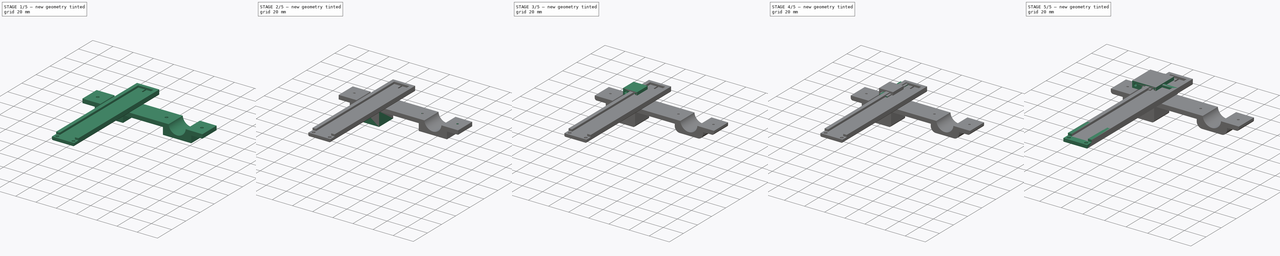
[diagram: build sequence overview — one tinted view per stage of 5, left to right]
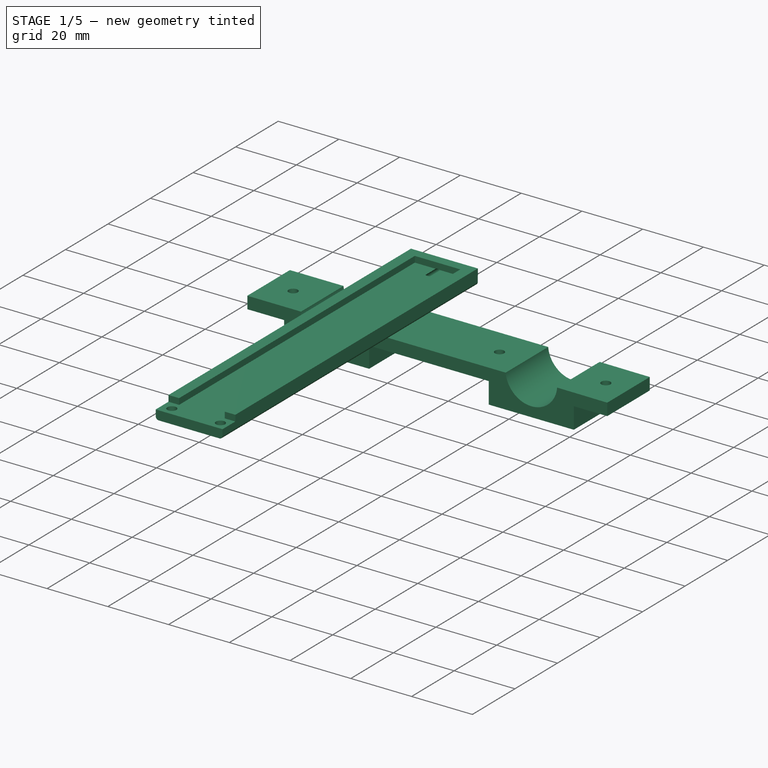
[diagram: stage 1 of 5 — iso view after this stage's code; geometry added in this stage tinted green]
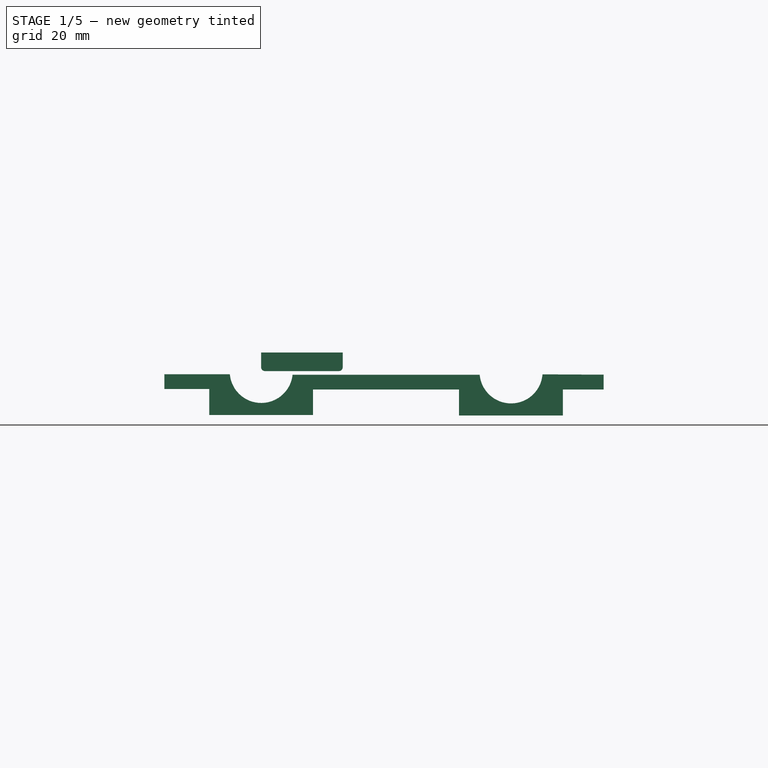
[diagram: stage 1 of 5 — front view after this stage's code; geometry added in this stage tinted green]
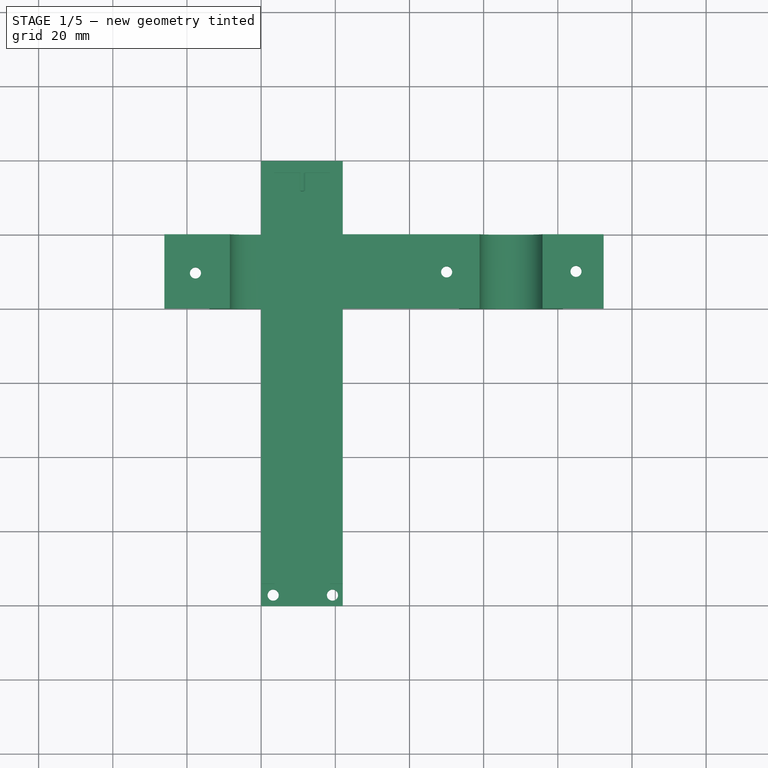
[diagram: stage 1 of 5 — top view after this stage's code; geometry added in this stage tinted green]
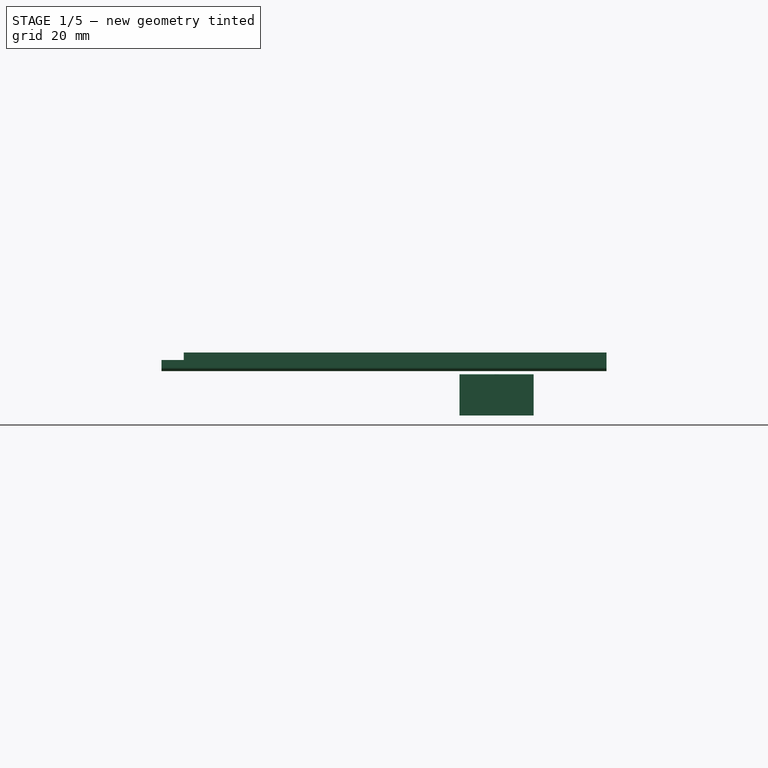
[diagram: stage 1 of 5 — right view after this stage's code; geometry added in this stage tinted green]
FCSTD DOCUMENT  (FreeCAD 0.21R33771 (Git))
Label: tensioner
License: All rights reserved
LicenseURL: http://en.wikipedia.org/wiki/All_rights_reserved
objects: Sketcher::SketchObject×27, PartDesign::Pad×15, PartDesign::Fillet×14, PartDesign::Hole×12, PartDesign::Body×9, App::Part×1
note: 118 computed .brp shape members not serialized (recipe doc carries the construction recipe); baked Part::Feature solids carry a one-line shape summary decoded from their .brp

FEATURE [Sketcher::SketchObject] Sketch011
  FullyConstrained = false
  MapMode = 5
  Placement = pos=(0,0,0) rot=(1,0,0;1.5708rad)
  Support = -> [XZ_Plane004]
  sketch-geometry (25):
    g0: LineSegment StartX=-26.1045 StartY=-0.846671 StartZ=0 EndX=-8.4399 EndY=-0.846671 EndZ=0
    g1: LineSegment StartX=92.3713 StartY=-0.974902 StartZ=0 EndX=92.3713 EndY=-4.9749 EndZ=0
    g2: LineSegment StartX=81.3713 StartY=-11.9749 StartZ=0 EndX=53.3713 EndY=-11.9749 EndZ=0
    g3: LineSegment StartX=-26.1045 StartY=-4.84667 StartZ=0 EndX=-26.1045 EndY=-0.846671 EndZ=0
    g4: GeomPoint X=-14 Y=-11.8467 Z=0
    g5: GeomPoint X=-26.1045 Y=-4.84667 Z=0
    g6: LineSegment StartX=-26.1045 StartY=-4.84667 StartZ=0 EndX=-14 EndY=-4.84667 EndZ=0
    g7: LineSegment StartX=-14 StartY=-11.8467 StartZ=0 EndX=-14 EndY=-4.84667 EndZ=0
    g8: GeomPoint X=14 Y=-11.8467 Z=0
    g9: GeomPoint X=14 Y=-4.97342 Z=0
    g10: LineSegment StartX=14 StartY=-4.97342 StartZ=0 EndX=14 EndY=-11.8467 EndZ=0
    g11: GeomPoint X=53.3713 Y=-4.97342 Z=0
    g12: GeomPoint X=53.3713 Y=-11.9749 Z=0
    g13: LineSegment StartX=53.3713 StartY=-4.97342 StartZ=0 EndX=53.3713 EndY=-11.9749 EndZ=0
    g14: LineSegment StartX=53.3713 StartY=-4.97342 StartZ=0 EndX=14 EndY=-4.97342 EndZ=0
    g15: LineSegment StartX=14 StartY=-11.8467 StartZ=0 EndX=-14 EndY=-11.8467 EndZ=0
    g16: GeomPoint X=81.3713 Y=-4.9749 Z=0
    g17: GeomPoint X=81.3713 Y=-11.9749 Z=0
    g18: LineSegment StartX=81.3713 StartY=-11.9749 StartZ=0 EndX=81.3713 EndY=-4.9749 EndZ=0
    g19: LineSegment StartX=81.3713 StartY=-4.9749 StartZ=0 EndX=92.3713 EndY=-4.9749 EndZ=0
    g20: ArcOfCircle CenterX=0.0270279 CenterY=-0.0975782 CenterZ=0 NormalX=0 NormalY=0 NormalZ=1 AngleXU=0 Radius=8.5 StartAngle=3.22984 EndAngle=6.17899
    g21: GeomPoint X=-8.4399 Y=-0.846671 Z=0
    g22: LineSegment StartX=8.48093 StartY=-0.981613 StartZ=0 EndX=58.9346 EndY=-0.981613 EndZ=0
    g23: ArcOfCircle CenterX=67.4004 CenterY=-0.219816 CenterZ=0 NormalX=0 NormalY=0 NormalZ=1 AngleXU=0 Radius=8.5 StartAngle=3.23134 EndAngle=6.20465
    g24: LineSegment StartX=75.8742 StartY=-0.886654 StartZ=0 EndX=92.3713 EndY=-0.974902 EndZ=0
  constraints (45):
    c: Coincident(g24,g1)
    c: Coincident(g3,g0)
    c: Horizontal(g0)
    c: Horizontal(g2)
    c: Vertical(g3)
    c: PointOnObject(g5,g3)
    c: Coincident(g6,g5)
    c: Horizontal(g6)
    c: Coincident(g7,g4)
    c: Coincident(g7,g6)
    c: Vertical(g7)
    c: PointOnObject(g3,g6)
    c: Distance(g3) = 4
    c: Distance(g7) = 7
    c: Coincident(g10,g9)
    c: Coincident(g10,g8)
    c: Vertical(g10)
    c: PointOnObject(g12,g2)
    c: Coincident(g13,g11)
    c: Coincident(g13,g12)
    c: Vertical(g13)
    c: Coincident(g14,g13)
    c: Coincident(g14,g10)
    c: Horizontal(g14)
    c: PointOnObject(g2,g13)
    c: PointOnObject(g17,g2)
    c: Coincident(g18,g17)
    c: Coincident(g18,g16)
    c: Vertical(g18)
    c: Coincident(g19,g18)
    c: Coincident(g1,g19)
    c: PointOnObject(g2,g18)
    c: Distance(g19) = 11
    c: Distance(g1) = 4
    c: Coincident(g20,g21)
    c: Coincident(g22,g20)
    c: Coincident(g22,g23)
    c: Coincident(g23,g24)
    c: Coincident(g15,g10)
    c: Coincident(g15,g7)
    c: Parallel(g15,g0)
    c: Coincident(g0,g20)
    c: Radius(g20) = 8.5
    c: Radius(g23) = 8.5
    c: Parallel(g22,g14)
FEATURE [PartDesign::Pad] Pad001
  Direction = (0,-1,-2e-16)
  Length = 20
  Length2 = 10
  Placement = pos=(0,0,0) rot=(1,0,0;1.5708rad)
  Profile = -> Sketch011
  ReferenceAxis = -> Sketch011 [N_Axis]
  Type = 0
FEATURE [Sketcher::SketchObject] Sketch010
  AttachmentOffset = pos=(0,0,1) rot=(0,0,1;0rad)
  FullyConstrained = false
  MapMode = 5
  Placement = pos=(0,0,0.153329) rot=(0,0,1;3.14159rad)
  Support = -> [Pad001]
  sketch-geometry (7):
    g0: Circle CenterX=-84.9103 CenterY=10 CenterZ=0 NormalX=0 NormalY=0 NormalZ=1 AngleXU=0 Radius=2
    g1: GeomPoint X=-84.3241 Y=19.9828 Z=0
    g2: GeomPoint X=-84.9103 Y=0 Z=0
    g3: GeomPoint X=-92.3229 Y=9.96922 Z=0
    g4: Circle CenterX=-50.0233 CenterY=10.153 CenterZ=0 NormalX=0 NormalY=0 NormalZ=1 AngleXU=0 Radius=2
    g5: Circle CenterX=-17.7493 CenterY=10.2564 CenterZ=0 NormalX=0 NormalY=0 NormalZ=1 AngleXU=0 Radius=2
    g6: Circle CenterX=17.7112 CenterY=10.4449 CenterZ=0 NormalX=0 NormalY=0 NormalZ=1 AngleXU=0 Radius=2
  constraints (7):
    c: Diameter(g0) = 4
    c: Distance(g0,g1) = 10
    c: PointOnObject(g2,g-1)
    c: Distance(g0,g2) = 10
    c: Equal(g0,g4) = 4
    c: Equal(g0,g5) = 4
    c: Equal(g0,g6) = 4
FEATURE [PartDesign::Hole] Hole002
  BaseFeature = -> Pad001
  CustomThreadClearance = 0
  Depth = 25
  DepthType = 0
  Diameter = 3
  DrillForDepth = false
  DrillPoint = 1
  DrillPointAngle = 118
  HoleCutCountersinkAngle = 90
  HoleCutCustomValues = false
  HoleCutDepth = 0
  HoleCutDiameter = 6.1
  HoleCutType = 0
  ModelThread = false
  Placement = pos=(0,0,0) rot=(1,0,0;1.5708rad)
  Profile = -> Sketch010
  Tapered = false
  TaperedAngle = 90
  ThreadClass = 0
  ThreadDepth = 25
  ThreadDepthType = 0
  ThreadDirection = 0
  ThreadFit = 0
  ThreadSize = 0
  ThreadType = 0
  Threaded = false
  UseCustomThreadClearance = false
FEATURE [PartDesign::Body] Body004  label="salazki_front_peremichka"
  Group = -> [Sketch016,Pad006,Sketch017,Hole007]
  Origin = -> Origin007
  Placement = pos=(-1.3,-98.2,-31.9) rot=(-1,0,0;1.5708rad)
  Tip = -> Hole007
FEATURE [Sketcher::SketchObject] Sketch018  label="base001"
  FullyConstrained = false
  MapMode = 5
  Support = -> [XY_Plane008]
  sketch-geometry (4):
    g0: LineSegment StartX=22 StartY=-100.354 StartZ=0 EndX=0 EndY=-100.354 EndZ=0
    g1: LineSegment StartX=22 StartY=-100.354 StartZ=0 EndX=22 EndY=19.6464 EndZ=0
    g2: LineSegment StartX=0 StartY=-100.354 StartZ=0 EndX=0 EndY=19.6464 EndZ=0
    g3: LineSegment StartX=22 StartY=19.6464 StartZ=0 EndX=0 EndY=19.6464 EndZ=0
  constraints (10):
    c: Horizontal(g0)
    c: Coincident(g1,g0)
    c: Vertical(g1)
    c: Distance(g1) = 120
    c: Coincident(g2,g0)
    c: PointOnObject(g2,g-2)
    c: Vertical(g2)
    c: Coincident(g3,g1)
    c: Coincident(g3,g2)
    c: Horizontal(g3)
FEATURE [PartDesign::Pad] Pad007
  Direction = (0,0,1)
  Length = 3
  Length2 = 10
  Profile = -> Sketch018
  ReferenceAxis = -> Sketch018 [N_Axis]
  Type = 0
FEATURE [Sketcher::SketchObject] Sketch019  label="barer001"
  FullyConstrained = false
  MapMode = 5
  Placement = pos=(0,0,3) rot=(0,0,1;0rad)
  Support = -> [Pad007]
  sketch-geometry (8):
    g0: LineSegment StartX=3.5 StartY=16.4579 StartZ=0 EndX=3.5 EndY=-94.3465 EndZ=0
    g1: LineSegment StartX=3.5 StartY=-94.3465 StartZ=0 EndX=0 EndY=-94.3465 EndZ=0
    g2: LineSegment StartX=18.5022 StartY=16.4579 StartZ=0 EndX=18.5022 EndY=-94.3465 EndZ=0
    g3: LineSegment StartX=18.5022 StartY=-94.3465 StartZ=0 EndX=22.0022 EndY=-94.3465 EndZ=0
    g4: LineSegment StartX=0 StartY=19.6535 StartZ=0 EndX=22.0022 EndY=19.6535 EndZ=0
    g5: LineSegment StartX=3.5 StartY=16.4579 StartZ=0 EndX=18.5022 EndY=16.4579 EndZ=0
    g6: LineSegment StartX=22.0022 StartY=-94.3465 StartZ=0 EndX=22.0022 EndY=19.6535 EndZ=0
    g7: LineSegment StartX=0 StartY=-94.3465 StartZ=0 EndX=0 EndY=19.6535 EndZ=0
  constraints (21):
    c: Coincident(g0,g1)
    c: Horizontal(g1)
    c: Vertical(g0)
    c: Coincident(g2,g3)
    c: Horizontal(g3)
    c: Vertical(g2)
    c: Horizontal(g4)
    c: Distance(g1) = 3.5
    c: Distance(g3) = 3.5
    c: Horizontal(g5)
    c: Coincident(g0,g5)
    c: Coincident(g2,g5)
    c: Coincident(g6,g3)
    c: Vertical(g6)
    c: Distance(g6) = 114
    c: Coincident(g6,g4)
    c: Coincident(g7,g1)
    c: PointOnObject(g7,g-2)
    c: Vertical(g7)
    c: Distance(g7) = 114
    c: Coincident(g7,g4)
FEATURE [PartDesign::Pad] Pad008
  BaseFeature = -> Pad007
  Direction = (0,0,1)
  Length = 2
  Length2 = 10
  Profile = -> Sketch019
  ReferenceAxis = -> Sketch019 [N_Axis]
  Type = 0
FEATURE [Sketcher::SketchObject] Sketch021  label="krepeg_peremichka_holes"
  FullyConstrained = false
  MapMode = 5
  Placement = pos=(0,0,0) rot=(1,0,0;3.14159rad)
  sketch-geometry (2):
    g0: Circle CenterX=3.24556 CenterY=97.3959 CenterZ=0 NormalX=0 NormalY=0 NormalZ=1 AngleXU=0 Radius=1.5
    g1: Circle CenterX=19.2339 CenterY=97.391 CenterZ=0 NormalX=0 NormalY=0 NormalZ=1 AngleXU=0 Radius=1.5
  constraints (2):
    c: Diameter(g0) = 3
    c: Diameter(g1) = 3
FEATURE [PartDesign::Hole] Hole009  label="krepeg_[eremichka_holes"
  BaseFeature = -> Pad008
  CustomThreadClearance = 0
  Depth = 25
  DepthType = 0
  Diameter = 3
  DrillForDepth = false
  DrillPoint = 1
  DrillPointAngle = 118
  HoleCutCountersinkAngle = 90
  HoleCutCustomValues = false
  HoleCutDepth = 0
  HoleCutDiameter = 6.1
  HoleCutType = 0
  ModelThread = false
  Profile = -> Sketch021
  Tapered = false
  TaperedAngle = 90
  ThreadClass = 0
  ThreadDepth = 25
  ThreadDepthType = 0
  ThreadDirection = 0
  ThreadFit = 0
  ThreadSize = 0
  ThreadType = 0
  Threaded = false
  UseCustomThreadClearance = false
FEATURE [Sketcher::SketchObject] Sketch022  label="back_side_holes"
  FullyConstrained = false
  MapMode = 5
  Placement = pos=(0,19.6464,0) rot=(0,0.707107,0.707107;3.14159rad)
  Support = -> [Hole009]
  sketch-geometry (1):
    g0: Circle CenterX=-11.102 CenterY=2.00104 CenterZ=0 NormalX=0 NormalY=0 NormalZ=1 AngleXU=0 Radius=1.25
  constraints (1):
    c: Diameter(g0) = 2.5
FEATURE [PartDesign::Hole] Hole010
  BaseFeature = -> Hole009
  CustomThreadClearance = 0
  Depth = 8
  DepthType = 0
  Diameter = 2.5
  DrillForDepth = false
  DrillPoint = 1
  DrillPointAngle = 118
  HoleCutCountersinkAngle = 90
  HoleCutCustomValues = false
  HoleCutDepth = 0
  HoleCutDiameter = 6.1
  HoleCutType = 0
  ModelThread = false
  Profile = -> Sketch022
  Tapered = false
  TaperedAngle = 90
  ThreadClass = 0
  ThreadDepth = 8
  ThreadDepthType = 0
  ThreadDirection = 0
  ThreadFit = 0
  ThreadSize = 0
  ThreadType = 0
  Threaded = false
  UseCustomThreadClearance = false
FEATURE [PartDesign::Body] Body002  label="base_low"
  Group = -> [Sketch011,Pad001,Sketch010,Hole002,Fillet006,Fillet007,Fillet008,Fillet009,Fillet010,Fillet011]
  Origin = -> Origin004
  Placement = pos=(0,-20.1,-1.5) rot=(1,0,0;3.14159rad)
  Tip = -> Fillet011
FEATURE [PartDesign::Fillet] Fillet012
  Base = -> Hole010 [Edge6]
  BaseFeature = -> Hole010
  Radius = 1
  SupportTransform = false
  UseAllEdges = false
FEATURE [PartDesign::Fillet] Fillet013
  Base = -> Fillet012 [Edge24]
  BaseFeature = -> Fillet012
  Radius = 1
  SupportTransform = false
  UseAllEdges = false
FEATURE [PartDesign::Body] Body005  label="salazki_top"
  Group = -> [Sketch018,Pad007,Sketch019,Pad008,Sketch021,Hole009,Sketch022,Hole010,Fillet012,Fillet013]
  Origin = -> Origin008
  Placement = pos=(11.2,-74.1,-49) rot=(0,0,1;3.14159rad)
  Tip = -> Fillet013
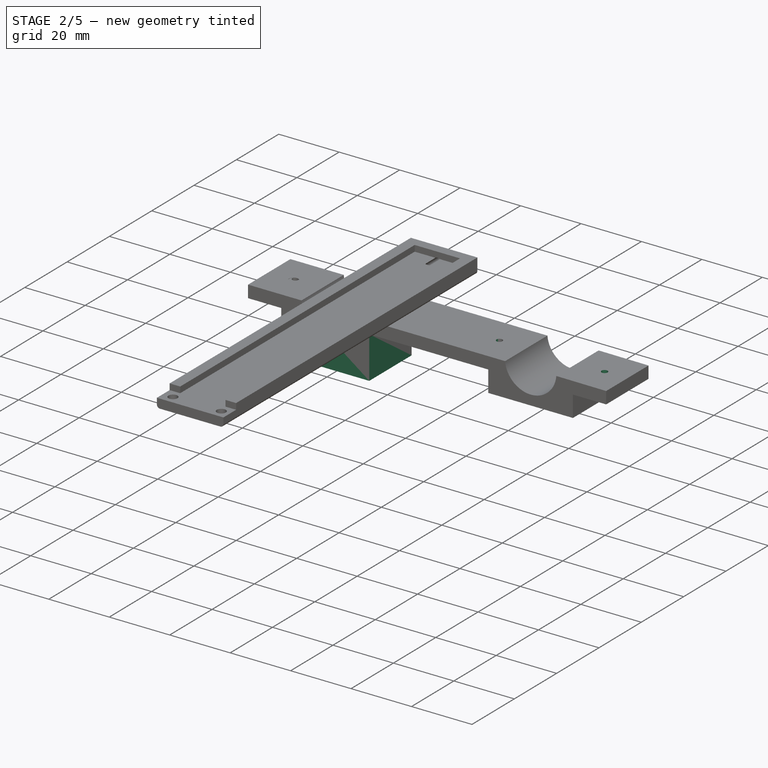
[diagram: stage 2 of 5 — iso view after this stage's code; geometry added in this stage tinted green]
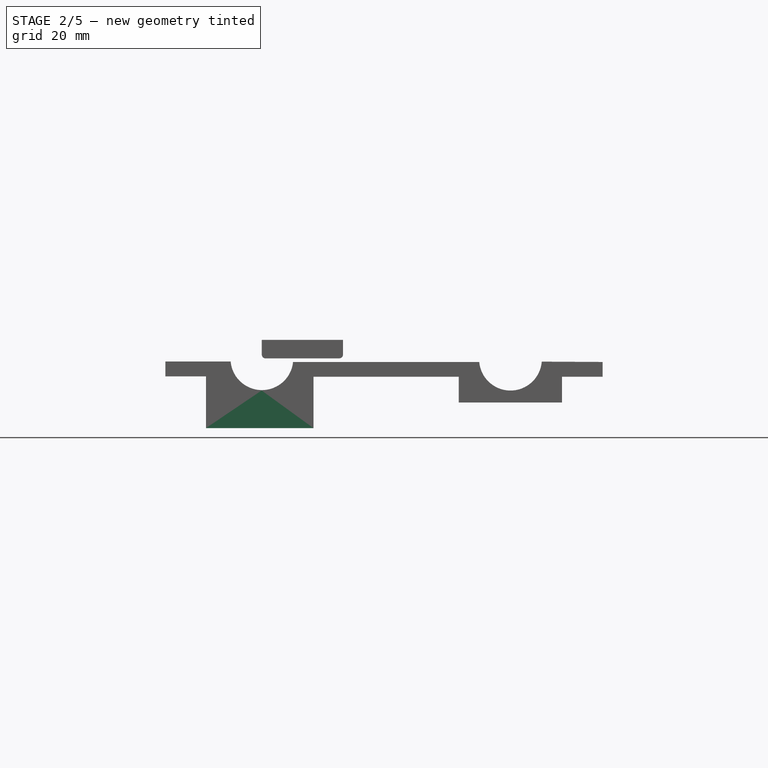
[diagram: stage 2 of 5 — front view after this stage's code; geometry added in this stage tinted green]
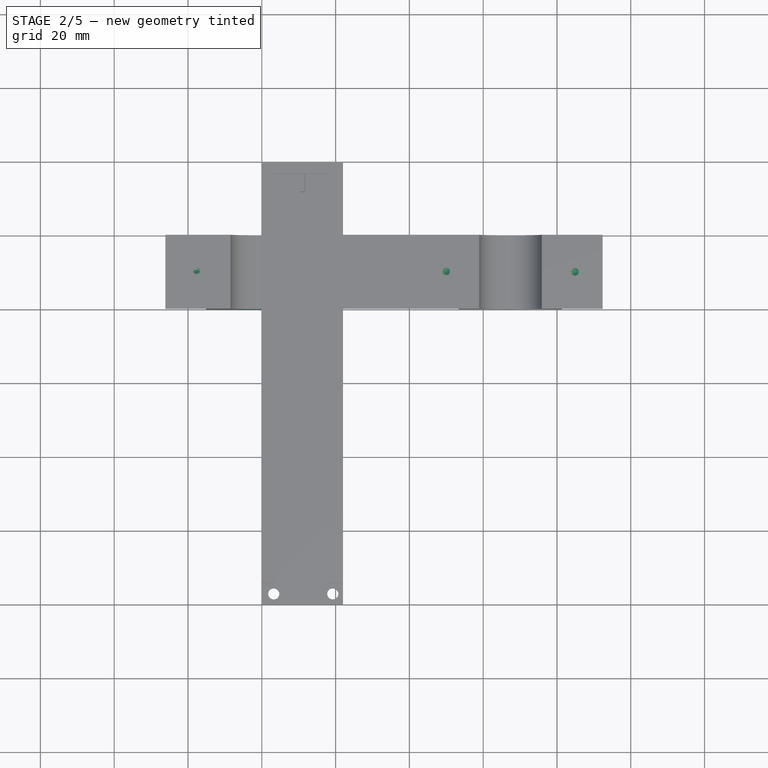
[diagram: stage 2 of 5 — top view after this stage's code; geometry added in this stage tinted green]
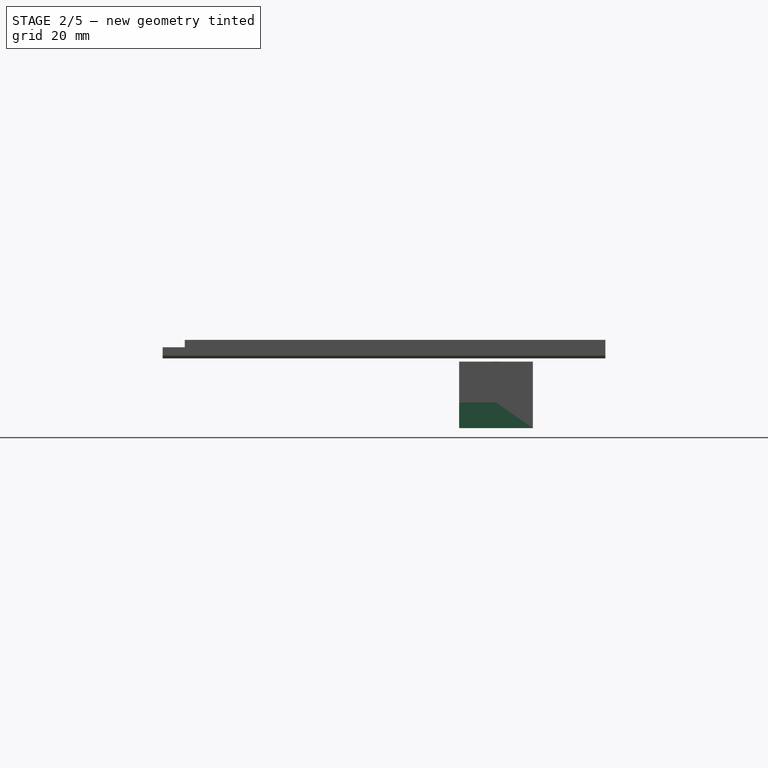
[diagram: stage 2 of 5 — right view after this stage's code; geometry added in this stage tinted green]
FEATURE [App::Part] Part
  Origin = -> Origin002
FEATURE [Sketcher::SketchObject] Sketch009
  FullyConstrained = false
  MapMode = 5
  Placement = pos=(0,0,0) rot=(1,0,0;1.5708rad)
  Support = -> [XZ_Plane]
  sketch-geometry (25):
    g0: LineSegment StartX=-26.1336 StartY=-0.895694 StartZ=0 EndX=-8.47215 EndY=-0.895694 EndZ=0
    g1: LineSegment StartX=92.3713 StartY=-0.974902 StartZ=0 EndX=92.3713 EndY=-4.9749 EndZ=0
    g2: LineSegment StartX=81.3713 StartY=-11.9749 StartZ=0 EndX=53.3713 EndY=-11.9749 EndZ=0
    g3: LineSegment StartX=-26.1336 StartY=-4.89569 StartZ=0 EndX=-26.1336 EndY=-0.895694 EndZ=0
    g4: GeomPoint X=-15.1336 Y=-18.8957 Z=0
    g5: GeomPoint X=-26.1336 Y=-4.89569 Z=0
    g6: LineSegment StartX=-26.1336 StartY=-4.89569 StartZ=0 EndX=-15.1336 EndY=-4.89569 EndZ=0
    g7: LineSegment StartX=-15.1336 StartY=-18.8957 StartZ=0 EndX=-15.1336 EndY=-4.89569 EndZ=0
    g8: GeomPoint X=14 Y=-18.8957 Z=0
    g9: GeomPoint X=14 Y=-4.97342 Z=0
    g10: LineSegment StartX=14 StartY=-4.97342 StartZ=0 EndX=14 EndY=-18.8957 EndZ=0
    g11: GeomPoint X=53.3713 Y=-4.97342 Z=0
    g12: GeomPoint X=53.3713 Y=-11.9749 Z=0
    g13: LineSegment StartX=53.3713 StartY=-4.97342 StartZ=0 EndX=53.3713 EndY=-11.9749 EndZ=0
    g14: LineSegment StartX=53.3713 StartY=-4.97342 StartZ=0 EndX=14 EndY=-4.97342 EndZ=0
    g15: LineSegment StartX=14 StartY=-18.8957 StartZ=0 EndX=-15.1336 EndY=-18.8957 EndZ=0
    g16: GeomPoint X=81.3713 Y=-4.9749 Z=0
    g17: GeomPoint X=81.3713 Y=-11.9749 Z=0
    g18: LineSegment StartX=81.3713 StartY=-11.9749 StartZ=0 EndX=81.3713 EndY=-4.9749 EndZ=0
    g19: LineSegment StartX=81.3713 StartY=-4.9749 StartZ=0 EndX=92.3713 EndY=-4.9749 EndZ=0
    g20: ArcOfCircle CenterX=-0.000353895 CenterY=-0.203777 CenterZ=0 NormalX=0 NormalY=0 NormalZ=1 AngleXU=0 Radius=8.5 StartAngle=3.22308 EndAngle=6.19154
    g21: GeomPoint X=-8.47215 Y=-0.895694 Z=0
    g22: LineSegment StartX=8.46397 StartY=-0.981699 StartZ=0 EndX=58.9346 EndY=-0.981699 EndZ=0
    g23: ArcOfCircle CenterX=67.4004 CenterY=-0.219818 CenterZ=0 NormalX=0 NormalY=0 NormalZ=1 AngleXU=0 Radius=8.5 StartAngle=3.23135 EndAngle=6.20465
    g24: LineSegment StartX=75.8742 StartY=-0.886654 StartZ=0 EndX=92.3713 EndY=-0.974902 EndZ=0
  constraints (46):
    c: Coincident(g24,g1)
    c: Coincident(g3,g0)
    c: Horizontal(g0)
    c: Horizontal(g2)
    c: Vertical(g3)
    c: PointOnObject(g5,g3)
    c: Coincident(g6,g5)
    c: Horizontal(g6)
    c: Coincident(g7,g4)
    c: Coincident(g7,g6)
    c: Vertical(g7)
    c: PointOnObject(g3,g6)
    c: Distance(g3) = 4
    c: Distance(g7) = 14
    c: Coincident(g10,g9)
    c: Coincident(g10,g8)
    c: Vertical(g10)
    c: PointOnObject(g12,g2)
    c: Coincident(g13,g11)
    c: Coincident(g13,g12)
    c: Vertical(g13)
    c: Coincident(g14,g13)
    c: Coincident(g14,g10)
    c: Horizontal(g14)
    c: PointOnObject(g2,g13)
    c: Distance(g6) = 11
    c: PointOnObject(g17,g2)
    c: Coincident(g18,g17)
    c: Coincident(g18,g16)
    c: Vertical(g18)
    c: Coincident(g19,g18)
    c: Coincident(g1,g19)
    c: PointOnObject(g2,g18)
    c: Distance(g19) = 11
    c: Distance(g1) = 4
    c: Coincident(g20,g21)
    c: Coincident(g22,g20)
    c: Coincident(g22,g23)
    c: Coincident(g23,g24)
    c: Coincident(g15,g10)
    c: Coincident(g15,g7)
    c: Parallel(g15,g0)
    c: Coincident(g0,g20)
    c: Radius(g20) = 8.5
    c: Radius(g23) = 8.5
    c: Parallel(g22,g14)
FEATURE [PartDesign::Pad] Pad
  Direction = (0,-1,2e-16)
  Length = 20
  Length2 = 10
  Placement = pos=(0,0,0) rot=(1,0,0;1.5708rad)
  Profile = -> Sketch009
  ReferenceAxis = -> Sketch009 [N_Axis]
  Type = 0
FEATURE [Sketcher::SketchObject] Sketch  label="base_low_holes"
  AttachmentOffset = pos=(0,0,1) rot=(0,0,1;0rad)
  FullyConstrained = false
  MapMode = 5
  Placement = pos=(0,0,0.104306) rot=(0,0,1;3.14159rad)
  Support = -> [Pad]
  sketch-geometry (7):
    g0: Circle CenterX=-84.9158 CenterY=10.0879 CenterZ=0 NormalX=0 NormalY=0 NormalZ=1 AngleXU=0 Radius=1.25
    g1: GeomPoint X=-84.3241 Y=19.9828 Z=0
    g2: GeomPoint X=-84.9103 Y=0 Z=0
    g3: GeomPoint X=-92.3229 Y=9.96922 Z=0
    g4: Circle CenterX=-50.0238 CenterY=9.9384 CenterZ=0 NormalX=0 NormalY=0 NormalZ=1 AngleXU=0 Radius=1.25
    g5: Circle CenterX=-17.7404 CenterY=9.85172 CenterZ=0 NormalX=0 NormalY=0 NormalZ=1 AngleXU=0 Radius=1.25
    g6: Circle CenterX=17.7087 CenterY=9.64112 CenterZ=0 NormalX=0 NormalY=0 NormalZ=1 AngleXU=0 Radius=1.25
  constraints (5):
    c: Diameter(g0) = 2.5
    c: PointOnObject(g2,g-1)
    c: Equal(g0,g4) = 4
    c: Equal(g0,g5) = 4
    c: Equal(g0,g6) = 4
FEATURE [PartDesign::Hole] Hole
  BaseFeature = -> Pad
  CustomThreadClearance = 0
  Depth = 4
  DepthType = 0
  Diameter = 2
  DrillForDepth = false
  DrillPoint = 1
  DrillPointAngle = 118
  HoleCutCountersinkAngle = 90
  HoleCutCustomValues = false
  HoleCutDepth = 0
  HoleCutDiameter = 6.1
  HoleCutType = 0
  ModelThread = false
  Placement = pos=(0,0,0) rot=(1,0,0;1.5708rad)
  Profile = -> Sketch
  Tapered = false
  TaperedAngle = 90
  ThreadClass = 0
  ThreadDepth = 4
  ThreadDepthType = 0
  ThreadDirection = 0
  ThreadFit = 0
  ThreadSize = 0
  ThreadType = 0
  Threaded = false
  UseCustomThreadClearance = false
FEATURE [PartDesign::Body] Body001  label="base_high"
  Group = -> [Sketch009,Pad,Sketch,Hole,Sketch005,Hole001,Fillet,Fillet001,Fillet002,Fillet003,Fillet004,Fillet005]
  Origin = -> Origin
  Tip = -> Fillet005
FEATURE [PartDesign::Fillet] Fillet006
  Base = -> Hole002 [Edge1]
  BaseFeature = -> Hole002
  Placement = pos=(0,0,0) rot=(1,0,0;1.5708rad)
  Radius = 2
  SupportTransform = false
  UseAllEdges = false
FEATURE [PartDesign::Fillet] Fillet007
  Base = -> Fillet006 [Edge43]
  BaseFeature = -> Fillet006
  Placement = pos=(0,0,0) rot=(1,0,0;1.5708rad)
  Radius = 5
  SupportTransform = false
  UseAllEdges = false
FEATURE [PartDesign::Fillet] Fillet008
  Base = -> Fillet007 [Edge27]
  BaseFeature = -> Fillet007
  Placement = pos=(0,0,0) rot=(1,0,0;1.5708rad)
  Radius = 5
  SupportTransform = false
  UseAllEdges = false
FEATURE [PartDesign::Fillet] Fillet009
  Base = -> Fillet008 [Edge38]
  BaseFeature = -> Fillet008
  Placement = pos=(0,0,0) rot=(1,0,0;1.5708rad)
  Radius = 5
  SupportTransform = false
  UseAllEdges = false
FEATURE [PartDesign::Fillet] Fillet010
  Base = -> Fillet009 [Edge30]
  BaseFeature = -> Fillet009
  Placement = pos=(0,0,0) rot=(1,0,0;1.5708rad)
  Radius = 5
  SupportTransform = false
  UseAllEdges = false
FEATURE [PartDesign::Fillet] Fillet011
  Base = -> Fillet010 [Edge34]
  BaseFeature = -> Fillet010
  Placement = pos=(0,0,0) rot=(1,0,0;1.5708rad)
  Radius = 2
  SupportTransform = false
  UseAllEdges = false
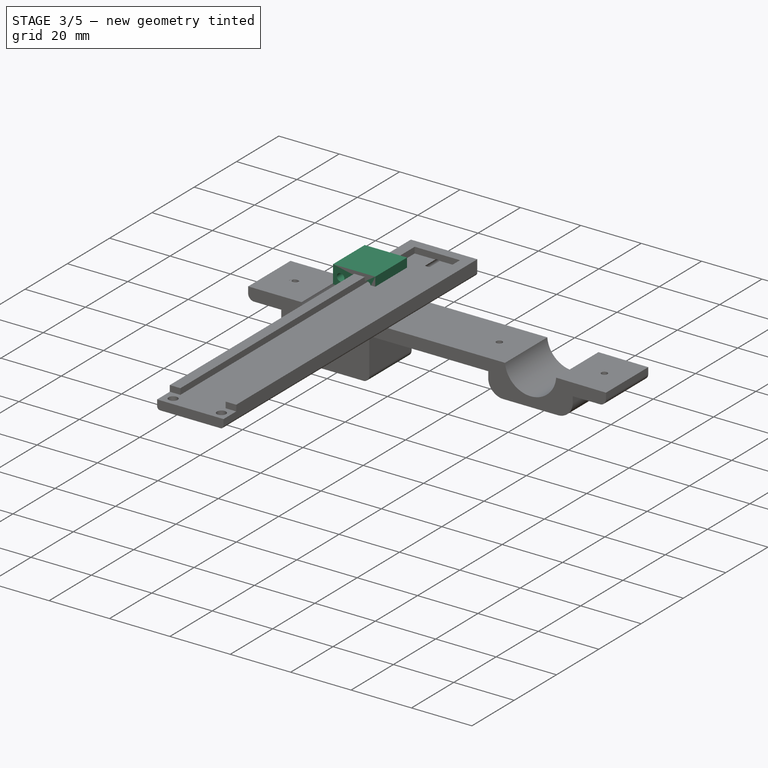
[diagram: stage 3 of 5 — iso view after this stage's code; geometry added in this stage tinted green]
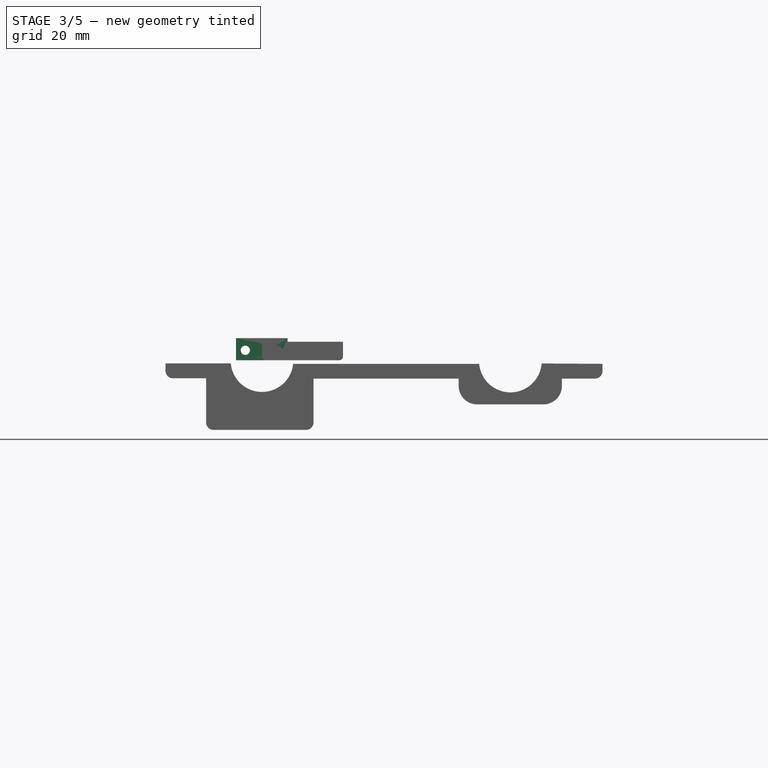
[diagram: stage 3 of 5 — front view after this stage's code; geometry added in this stage tinted green]
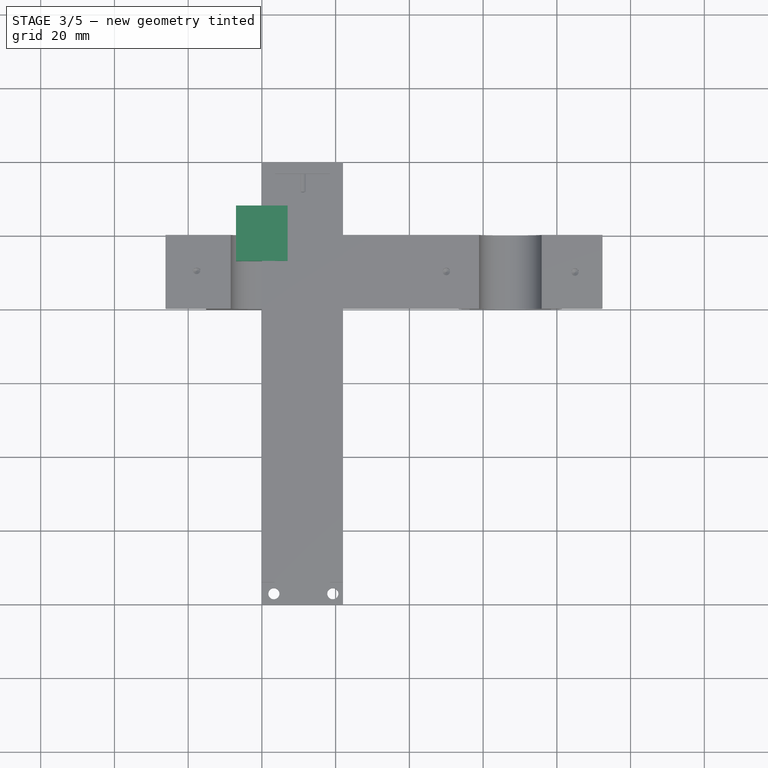
[diagram: stage 3 of 5 — top view after this stage's code; geometry added in this stage tinted green]
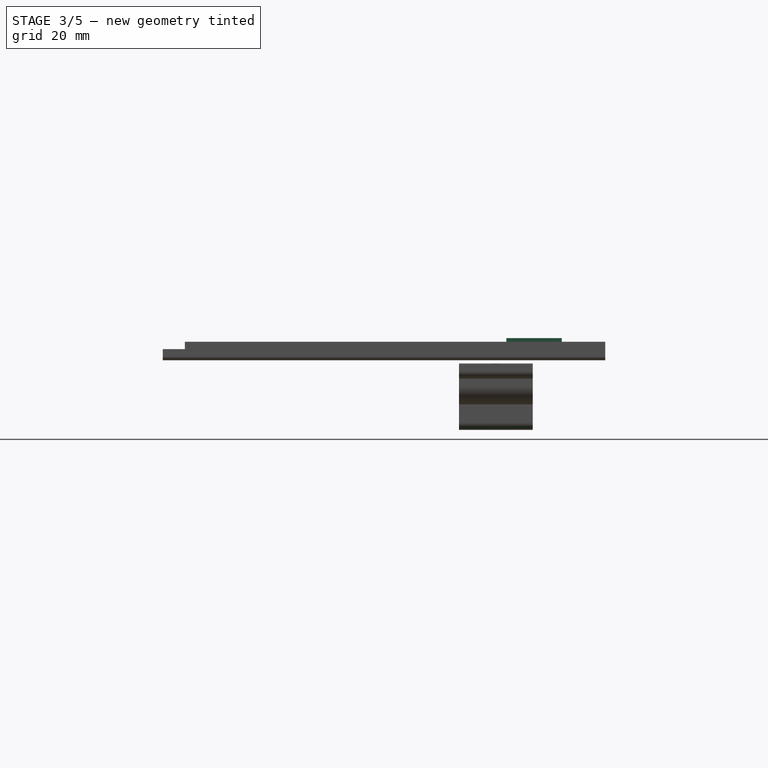
[diagram: stage 3 of 5 — right view after this stage's code; geometry added in this stage tinted green]
FEATURE [Sketcher::SketchObject] Sketch005
  AttachmentOffset = pos=(-11,-74,1) rot=(0,0,1;0rad)
  FullyConstrained = false
  MapMode = 5
  Placement = pos=(-11,74,-19.8957) rot=(1,0,0;3.14159rad)
  Support = -> [Hole]
  sketch-geometry (4):
    g0: Circle CenterX=1.67405 CenterY=88.0111 CenterZ=0 NormalX=0 NormalY=0 NormalZ=1 AngleXU=0 Radius=1.25
    g1: Circle CenterX=20.1547 CenterY=88.0424 CenterZ=0 NormalX=0 NormalY=0 NormalZ=1 AngleXU=0 Radius=1.25
    g2: Circle CenterX=1.64597 CenterY=80.0108 CenterZ=0 NormalX=0 NormalY=0 NormalZ=1 AngleXU=0 Radius=1.25
    g3: Circle CenterX=20.1266 CenterY=80.0422 CenterZ=0 NormalX=0 NormalY=0 NormalZ=1 AngleXU=0 Radius=1.25
  constraints (4):
    c: Diameter(g0) = 2.5
    c: Diameter(g1) = 2.5
    c: Equal(g0,g2) = 2.5
    c: Equal(g1,g3) = 2.5
FEATURE [PartDesign::Hole] Hole001
  BaseFeature = -> Hole
  CustomThreadClearance = 0
  Depth = 10
  DepthType = 0
  Diameter = 2.5
  DrillForDepth = false
  DrillPoint = 1
  DrillPointAngle = 118
  HoleCutCountersinkAngle = 90
  HoleCutCustomValues = false
  HoleCutDepth = 0
  HoleCutDiameter = 6.1
  HoleCutType = 0
  ModelThread = false
  Placement = pos=(0,0,0) rot=(1,0,0;1.5708rad)
  Profile = -> Sketch005
  Tapered = false
  TaperedAngle = 90
  ThreadClass = 0
  ThreadDepth = 10
  ThreadDepthType = 0
  ThreadDirection = 0
  ThreadFit = 0
  ThreadSize = 0
  ThreadType = 0
  Threaded = false
  UseCustomThreadClearance = false
FEATURE [PartDesign::Body] Body007  label="ushko_socket"
  Group = -> [Sketch025,Sketch026,Pad012,Pad011,Sketch027,Hole011]
  Origin = -> Origin010
  Placement = pos=(0.5,-64.8,-26.8) rot=(0,1,0;3.14159rad)
  Tip = -> Hole011
FEATURE [Sketcher::SketchObject] Sketch028
  FullyConstrained = false
  MapMode = 5
  Support = -> [XY_Plane011]
  sketch-geometry (4):
    g0: LineSegment StartX=-7.01687 StartY=7.85048 StartZ=0 EndX=6.98313 EndY=7.85048 EndZ=0
    g1: LineSegment StartX=6.98313 StartY=7.85048 StartZ=0 EndX=6.98313 EndY=-7.14952 EndZ=0
    g2: LineSegment StartX=6.98313 StartY=-7.14952 StartZ=0 EndX=-7.01687 EndY=-7.14952 EndZ=0
    g3: LineSegment StartX=-7.01687 StartY=-7.14952 StartZ=0 EndX=-7.01687 EndY=7.85048 EndZ=0
  constraints (10):
    c: Coincident(g0,g1)
    c: Coincident(g1,g2)
    c: Coincident(g2,g3)
    c: Coincident(g3,g0)
    c: Horizontal(g0)
    c: Horizontal(g2)
    c: Vertical(g1)
    c: Vertical(g3)
    c: Distance(g0) = 14
    c: Distance(g3) = 15
FEATURE [PartDesign::Pad] Pad013
  Direction = (0,0,1)
  Length = 6
  Length2 = 10
  Profile = -> Sketch028
  ReferenceAxis = -> Sketch028 [N_Axis]
  Type = 0
FEATURE [Sketcher::SketchObject] Sketch029
  FullyConstrained = false
  MapMode = 5
  Placement = pos=(0,7.85048,0) rot=(0,0.707107,0.707107;3.14159rad)
  Support = -> [Pad013]
  sketch-geometry (4):
    g0: Circle CenterX=-4.21222 CenterY=2.68032 CenterZ=0 NormalX=0 NormalY=0 NormalZ=1 AngleXU=0 Radius=1.5
    g1: Circle CenterX=4.48775 CenterY=2.70411 CenterZ=0 NormalX=0 NormalY=0 NormalZ=1 AngleXU=0 Radius=1.5
    g2: GeomPoint X=-4.1585 Y=5.48981 Z=0
    g3: GeomPoint X=4.5598 Y=5.51319 Z=0
  constraints (5):
    c: Diameter(g0) = 3
    c: Diameter(g1) = 3
    c: Distance(g0,g1) = 8.7
    c: Distance(g0,g2) = 2.81
    c: Distance(g1,g3) = 2.81
FEATURE [PartDesign::Hole] Hole012
  BaseFeature = -> Pad013
  CustomThreadClearance = 0
  Depth = 25
  DepthType = 0
  Diameter = 2.5
  DrillForDepth = false
  DrillPoint = 1
  DrillPointAngle = 118
  HoleCutCountersinkAngle = 90
  HoleCutCustomValues = false
  HoleCutDepth = 0
  HoleCutDiameter = 6.1
  HoleCutType = 0
  ModelThread = false
  Profile = -> Sketch029
  Tapered = false
  TaperedAngle = 90
  ThreadClass = 0
  ThreadDepth = 25
  ThreadDepthType = 0
  ThreadDirection = 0
  ThreadFit = 0
  ThreadSize = 0
  ThreadType = 0
  Threaded = false
  UseCustomThreadClearance = false
FEATURE [PartDesign::Body] Body008  label="ushko_peremichka"
  Group = -> [Sketch028,Pad013,Sketch029,Hole012,Sketch030,Pad014]
  Origin = -> Origin011
  Placement = pos=(0.2,-45.9,-34.1) rot=(0,0.707107,-0.707107;3.14159rad)
  Tip = -> Pad014
FEATURE [PartDesign::Fillet] Fillet
  Base = -> Hole001 [Edge48]
  BaseFeature = -> Hole001
  Placement = pos=(0,0,0) rot=(1,0,0;1.5708rad)
  Radius = 2
  SupportTransform = false
  UseAllEdges = false
FEATURE [PartDesign::Fillet] Fillet001
  Base = -> Fillet [Edge47]
  BaseFeature = -> Fillet
  Placement = pos=(0,0,0) rot=(1,0,0;1.5708rad)
  Radius = 2
  SupportTransform = false
  UseAllEdges = false
FEATURE [PartDesign::Fillet] Fillet002
  Base = -> Fillet001 [Edge54]
  BaseFeature = -> Fillet001
  Placement = pos=(0,0,0) rot=(1,0,0;1.5708rad)
  Radius = 5
  SupportTransform = false
  UseAllEdges = false
FEATURE [PartDesign::Fillet] Fillet003
  Base = -> Fillet002 [Edge27]
  BaseFeature = -> Fillet002
  Placement = pos=(0,0,0) rot=(1,0,0;1.5708rad)
  Radius = 5
  SupportTransform = false
  UseAllEdges = false
FEATURE [PartDesign::Fillet] Fillet004
  Base = -> Fillet003 [Edge38]
  BaseFeature = -> Fillet003
  Placement = pos=(0,0,0) rot=(1,0,0;1.5708rad)
  Radius = 2
  SupportTransform = false
  UseAllEdges = false
FEATURE [PartDesign::Fillet] Fillet005
  Base = -> Fillet004 [Edge29]
  BaseFeature = -> Fillet004
  Placement = pos=(0,0,0) rot=(1,0,0;1.5708rad)
  Radius = 2
  SupportTransform = false
  UseAllEdges = false
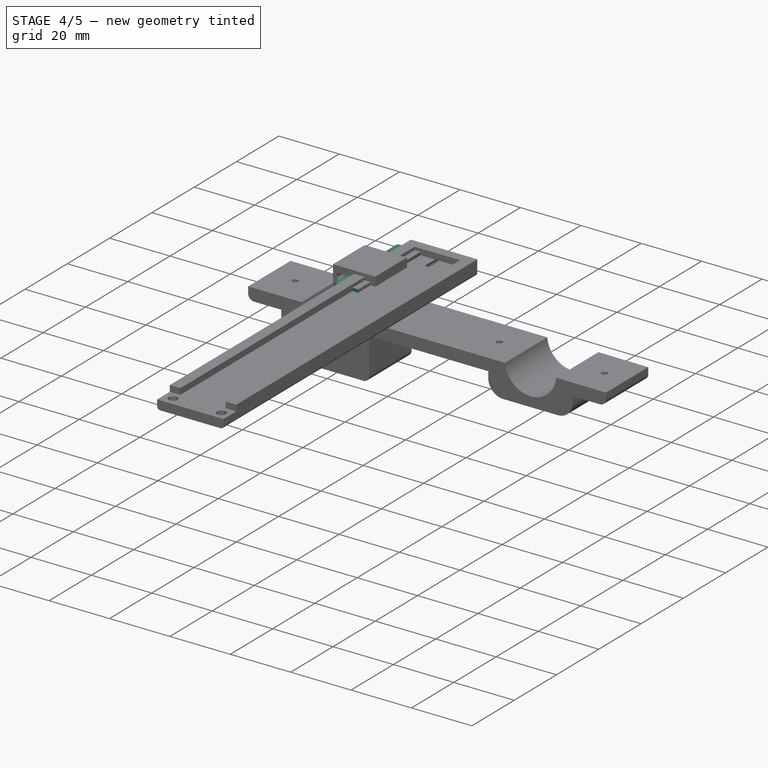
[diagram: stage 4 of 5 — iso view after this stage's code; geometry added in this stage tinted green]
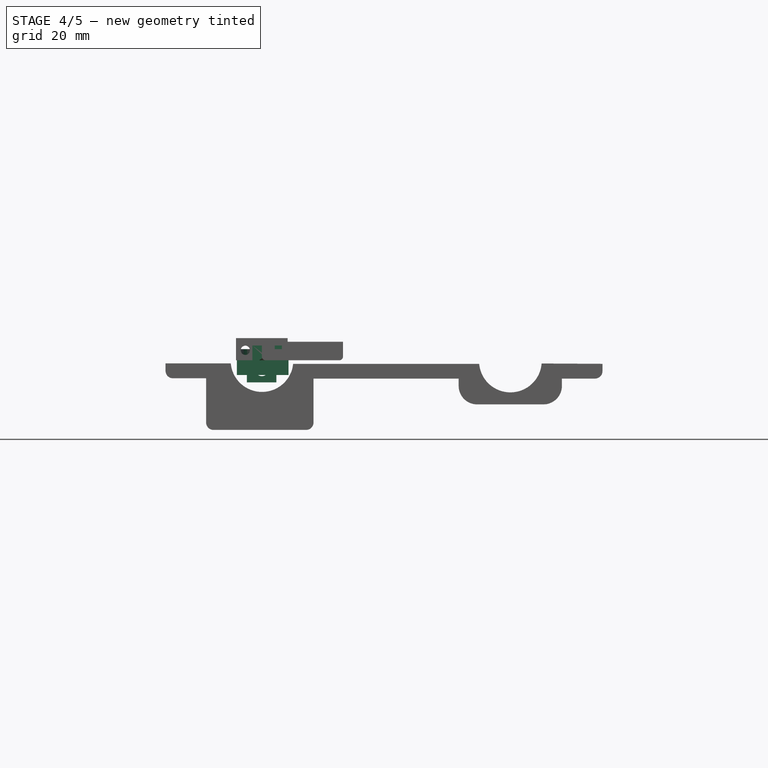
[diagram: stage 4 of 5 — front view after this stage's code; geometry added in this stage tinted green]
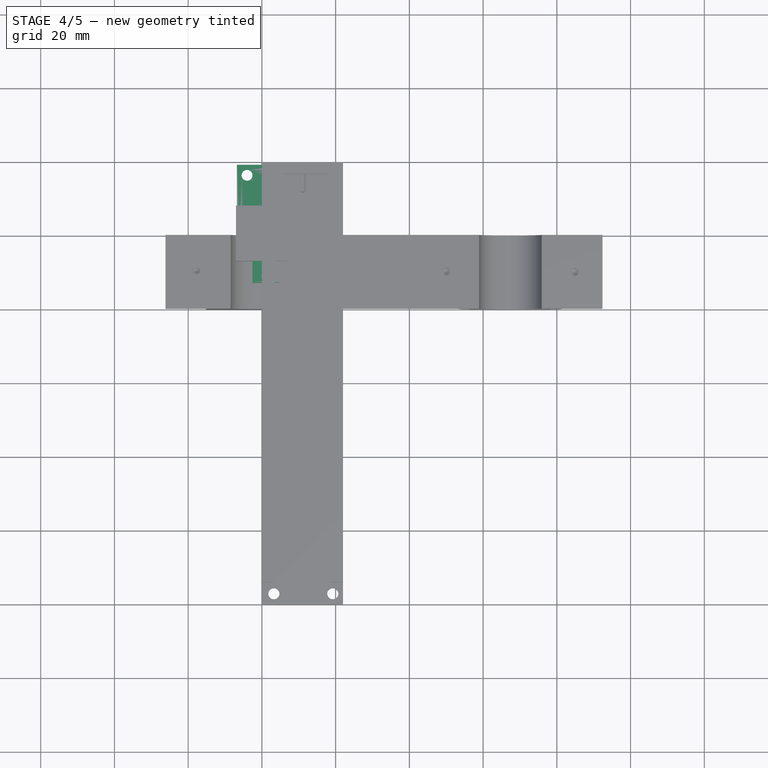
[diagram: stage 4 of 5 — top view after this stage's code; geometry added in this stage tinted green]
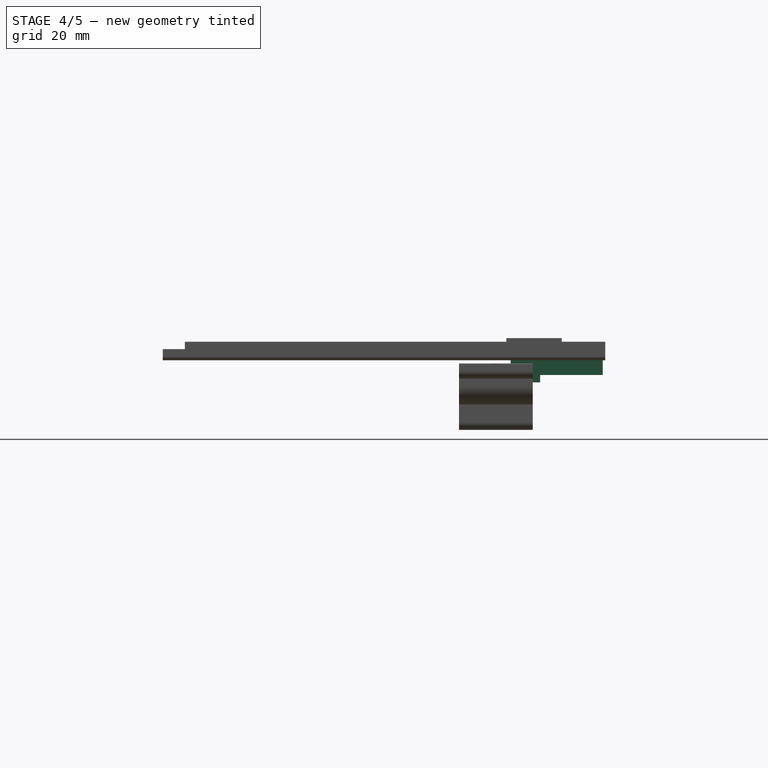
[diagram: stage 4 of 5 — right view after this stage's code; geometry added in this stage tinted green]
FEATURE [PartDesign::Body] Body003  label="salazki_peremichka"
  Group = -> [Sketch014,Pad004,Sketch015,Hole006,Sketch002,Pad005]
  Origin = -> Origin006
  Placement = pos=(1.8,20.3,-32.7) rot=(-1,0,0;1.5708rad)
  Tip = -> Pad005
FEATURE [Sketcher::SketchObject] Sketch016
  FullyConstrained = false
  MapMode = 5
  Support = -> [XY_Plane007]
  sketch-geometry (4):
    g0: LineSegment StartX=-2.5725 StartY=16.9705 StartZ=0 EndX=5.4275 EndY=16.9705 EndZ=0
    g1: LineSegment StartX=5.4275 StartY=16.9705 StartZ=0 EndX=5.4275 EndY=-13.0295 EndZ=0
    g2: LineSegment StartX=5.4275 StartY=-13.0295 StartZ=0 EndX=-2.5725 EndY=-13.0295 EndZ=0
    g3: LineSegment StartX=-2.5725 StartY=-13.0295 StartZ=0 EndX=-2.5725 EndY=16.9705 EndZ=0
  constraints (10):
    c: Coincident(g0,g1)
    c: Coincident(g1,g2)
    c: Coincident(g2,g3)
    c: Coincident(g3,g0)
    c: Horizontal(g0)
    c: Horizontal(g2)
    c: Vertical(g1)
    c: Vertical(g3)
    c: Distance(g0) = 8
    c: Distance(g3) = 30
FEATURE [PartDesign::Pad] Pad006
  Direction = (0,0,1)
  Length = 4
  Length2 = 10
  Profile = -> Sketch016
  ReferenceAxis = -> Sketch016 [N_Axis]
  Type = 0
FEATURE [Sketcher::SketchObject] Sketch017
  FullyConstrained = false
  MapMode = 5
  Placement = pos=(0,0,0) rot=(1,0,0;3.14159rad)
  Support = -> [Pad006]
  sketch-geometry (2):
    g0: Circle CenterX=1.40054 CenterY=11.1997 CenterZ=0 NormalX=0 NormalY=0 NormalZ=1 AngleXU=0 Radius=1.5
    g1: Circle CenterX=1.41401 CenterY=-15.1315 CenterZ=0 NormalX=0 NormalY=0 NormalZ=1 AngleXU=0 Radius=1.5
  constraints (2):
    c: Diameter(g0) = 3
    c: Diameter(g1) = 3
FEATURE [PartDesign::Hole] Hole007
  BaseFeature = -> Pad006
  CustomThreadClearance = 0
  Depth = 25
  DepthType = 0
  Diameter = 3
  DrillForDepth = false
  DrillPoint = 1
  DrillPointAngle = 118
  HoleCutCountersinkAngle = 90
  HoleCutCustomValues = false
  HoleCutDepth = 0.5
  HoleCutDiameter = 5.6
  HoleCutType = 2
  ModelThread = false
  Profile = -> Sketch017
  Tapered = false
  TaperedAngle = 90
  ThreadClass = 0
  ThreadDepth = 25
  ThreadDepthType = 0
  ThreadDirection = 0
  ThreadFit = 0
  ThreadSize = 0
  ThreadType = 0
  Threaded = false
  UseCustomThreadClearance = false
FEATURE [Sketcher::SketchObject] Sketch023  label="gaika"
  AttachmentOffset = pos=(0,1,0) rot=(0,0,1;0rad)
  FullyConstrained = false
  MapMode = 5
  Placement = pos=(0,1,0) rot=(0,0,1;0rad)
  Support = -> [XY_Plane009]
  sketch-geometry (8):
    g0: LineSegment StartX=4.5892 StartY=-1.56819 StartZ=0 EndX=3.65269 EndY=3.19027 EndZ=0
    g1: LineSegment StartX=3.65269 StartY=3.19027 StartZ=0 EndX=-0.936511 EndY=4.75846 EndZ=0
    g2: LineSegment StartX=-0.936511 StartY=4.75846 StartZ=0 EndX=-4.5892 EndY=1.56819 EndZ=0
    g3: LineSegment StartX=-4.5892 StartY=1.56819 StartZ=0 EndX=-3.65269 EndY=-3.19027 EndZ=0
    g4: LineSegment StartX=-3.65269 StartY=-3.19027 StartZ=0 EndX=0.936511 EndY=-4.75846 EndZ=0
    g5: LineSegment StartX=0.936511 StartY=-4.75846 StartZ=0 EndX=4.5892 EndY=-1.56819 EndZ=0
    g6: Circle CenterX=0 CenterY=0 CenterZ=0 NormalX=0 NormalY=0 NormalZ=1 AngleXU=0 Radius=4.84974
    g7: Circle CenterX=0 CenterY=0 CenterZ=0 NormalX=0 NormalY=0 NormalZ=1 AngleXU=0 Radius=6.5
  constraints (17):
    c: Coincident(g0,g1)
    c: Coincident(g1,g2)
    c: Coincident(g2,g3)
    c: Coincident(g3,g4)
    c: Coincident(g4,g5)
    c: Coincident(g5,g0)
    c: Equal(g0, g1-g5) x5
    c: PointOnObject(g0,g6)
    c: PointOnObject(g1,g6)
    c: PointOnObject(g2,g6)
    c: PointOnObject(g3,g6)
    c: PointOnObject(g4,g6)
    c: PointOnObject(g5,g6)
    c: Coincident(g6,g-1)
    c: Coincident(g7,g6)
    c: Diameter(g7) = 13
    c: Distance(g3,g1) = 8.4
FEATURE [Sketcher::SketchObject] Sketch024  label="osnovanie"
  FullyConstrained = false
  MapMode = 5
  Placement = pos=(0,0,0) rot=(1,0,0;3.14159rad)
  sketch-geometry (10):
    g0: LineSegment StartX=-6.77328 StartY=6.01409 StartZ=0 EndX=7.22672 EndY=6.01409 EndZ=0
    g1: LineSegment StartX=7.22672 StartY=6.01409 StartZ=0 EndX=7.22672 EndY=-19 EndZ=0
    g2: LineSegment StartX=7.22672 StartY=-19 StartZ=0 EndX=-6.77328 EndY=-19 EndZ=0
    g3: LineSegment StartX=-6.77328 StartY=-19 StartZ=0 EndX=-6.77328 EndY=6.01409 EndZ=0
    g4: GeomPoint X=-5.34014 Y=-0.002895 Z=0
    g5: GeomPoint X=0.00557051 Y=-19 Z=0
    g6: Circle CenterX=-4.0252 CenterY=-16.19 CenterZ=0 NormalX=0 NormalY=0 NormalZ=1 AngleXU=0 Radius=1.5
    g7: Circle CenterX=4.6748 CenterY=-16.1902 CenterZ=0 NormalX=0 NormalY=0 NormalZ=1 AngleXU=0 Radius=1.5
    g8: GeomPoint X=-4.02924 Y=-19 Z=0
    g9: GeomPoint X=4.70736 Y=-19 Z=0
  constraints (18):
    c: Coincident(g0,g1)
    c: Coincident(g1,g2)
    c: Coincident(g2,g3)
    c: Coincident(g3,g0)
    c: Horizontal(g0)
    c: Horizontal(g2)
    c: Vertical(g1)
    c: Vertical(g3)
    c: PointOnObject(g5,g2)
    c: Distance(g-1,g5) = 19
    c: Diameter(g6) = 3
    c: Diameter(g7) = 3
    c: Distance(g0) = 14
    c: PointOnObject(g8,g2)
    c: Distance(g6,g8) = 2.81
    c: PointOnObject(g9,g2)
    c: Distance(g7,g9) = 2.81
    c: Distance(g6,g7) = 8.7
FEATURE [PartDesign::Pad] Pad010
  Direction = (0,0,-1)
  Length = 4
  Length2 = 10
  Placement = pos=(0,0,0) rot=(1,0,0;3.14159rad)
  Profile = -> Sketch024
  ReferenceAxis = -> Sketch024 [N_Axis]
  Type = 0
FEATURE [PartDesign::Pad] Pad009
  BaseFeature = -> Pad010
  Direction = (0,0,1)
  Length = 3
  Length2 = 10
  Placement = pos=(0,0,0) rot=(1,0,0;3.14159rad)
  Profile = -> Sketch023
  ReferenceAxis = -> Sketch023 [N_Axis]
  Type = 0
FEATURE [PartDesign::Body] Body006  label="ushko"
  Group = -> [Sketch023,Sketch024,Pad010,Pad009]
  Origin = -> Origin009
  Placement = pos=(0,-64.8,-42) rot=(0,0,1;0rad)
  Tip = -> Pad009
FEATURE [Sketcher::SketchObject] Sketch025  label="gaika001"
  AttachmentOffset = pos=(0,1,0) rot=(0,0,1;0rad)
  FullyConstrained = false
  MapMode = 5
  Placement = pos=(0,1,0) rot=(0,0,1;0rad)
  Support = -> [XY_Plane010]
  sketch-geometry (8):
    g0: LineSegment StartX=4.5892 StartY=-1.56819 StartZ=0 EndX=3.65269 EndY=3.19027 EndZ=0
    g1: LineSegment StartX=3.65269 StartY=3.19027 StartZ=0 EndX=-0.936511 EndY=4.75846 EndZ=0
    g2: LineSegment StartX=-0.936511 StartY=4.75846 StartZ=0 EndX=-4.5892 EndY=1.56819 EndZ=0
    g3: LineSegment StartX=-4.5892 StartY=1.56819 StartZ=0 EndX=-3.65269 EndY=-3.19027 EndZ=0
    g4: LineSegment StartX=-3.65269 StartY=-3.19027 StartZ=0 EndX=0.936511 EndY=-4.75846 EndZ=0
    g5: LineSegment StartX=0.936511 StartY=-4.75846 StartZ=0 EndX=4.5892 EndY=-1.56819 EndZ=0
    g6: Circle CenterX=0 CenterY=0 CenterZ=0 NormalX=0 NormalY=0 NormalZ=1 AngleXU=0 Radius=4.84974
    g7: Circle CenterX=0 CenterY=0 CenterZ=0 NormalX=0 NormalY=0 NormalZ=1 AngleXU=0 Radius=6.5
  constraints (17):
    c: Coincident(g0,g1)
    c: Coincident(g1,g2)
    c: Coincident(g2,g3)
    c: Coincident(g3,g4)
    c: Coincident(g4,g5)
    c: Coincident(g5,g0)
    c: Equal(g0, g1-g5) x5
    c: PointOnObject(g0,g6)
    c: PointOnObject(g1,g6)
    c: PointOnObject(g2,g6)
    c: PointOnObject(g3,g6)
    c: PointOnObject(g4,g6)
    c: PointOnObject(g5,g6)
    c: Coincident(g6,g-1)
    c: Coincident(g7,g6)
    c: Diameter(g7) = 13
    c: Distance(g3,g1) = 8.4
FEATURE [Sketcher::SketchObject] Sketch026  label="osnovanie001"
  FullyConstrained = false
  MapMode = 5
  Placement = pos=(0,0,0) rot=(1,0,0;3.14159rad)
  sketch-geometry (10):
    g0: LineSegment StartX=-6.77328 StartY=6.01409 StartZ=0 EndX=7.22672 EndY=6.01409 EndZ=0
    g1: LineSegment StartX=7.22672 StartY=6.01409 StartZ=0 EndX=7.22672 EndY=-19 EndZ=0
    g2: LineSegment StartX=7.22672 StartY=-19 StartZ=0 EndX=-6.77328 EndY=-19 EndZ=0
    g3: LineSegment StartX=-6.77328 StartY=-19 StartZ=0 EndX=-6.77328 EndY=6.01409 EndZ=0
    g4: GeomPoint X=-5.34014 Y=-0.002895 Z=0
    g5: GeomPoint X=0.00557051 Y=-19 Z=0
    g6: Circle CenterX=-4.0252 CenterY=-16.19 CenterZ=0 NormalX=0 NormalY=0 NormalZ=1 AngleXU=0 Radius=1.5
    g7: Circle CenterX=4.6748 CenterY=-16.1902 CenterZ=0 NormalX=0 NormalY=0 NormalZ=1 AngleXU=0 Radius=1.5
    g8: GeomPoint X=-4.02924 Y=-19 Z=0
    g9: GeomPoint X=4.70736 Y=-19 Z=0
  constraints (18):
    c: Coincident(g0,g1)
    c: Coincident(g1,g2)
    c: Coincident(g2,g3)
    c: Coincident(g3,g0)
    c: Horizontal(g0)
    c: Horizontal(g2)
    c: Vertical(g1)
    c: Vertical(g3)
    c: PointOnObject(g5,g2)
    c: Distance(g-1,g5) = 19
    c: Diameter(g6) = 3
    c: Diameter(g7) = 3
    c: Distance(g0) = 14
    c: PointOnObject(g8,g2)
    c: Distance(g6,g8) = 2.81
    c: PointOnObject(g9,g2)
    c: Distance(g7,g9) = 2.81
    c: Distance(g6,g7) = 8.7
FEATURE [PartDesign::Pad] Pad012
  Direction = (0,0,-1)
  Length = 4
  Length2 = 10
  Placement = pos=(0,0,0) rot=(1,0,0;3.14159rad)
  Profile = -> Sketch026
  ReferenceAxis = -> Sketch026 [N_Axis]
  Type = 0
FEATURE [PartDesign::Pad] Pad011
  BaseFeature = -> Pad012
  Direction = (0,0,1)
  Length = 3
  Length2 = 10
  Placement = pos=(0,0,0) rot=(1,0,0;3.14159rad)
  Profile = -> Sketch025
  ReferenceAxis = -> Sketch025 [N_Axis]
  Type = 0
FEATURE [Sketcher::SketchObject] Sketch027
  FullyConstrained = false
  MapMode = 5
  Support = -> [Pad011]
  sketch-geometry (1):
    g0: Circle CenterX=-0.035548 CenterY=0.970795 CenterZ=0 NormalX=0 NormalY=0 NormalZ=1 AngleXU=0 Radius=3.00467
FEATURE [PartDesign::Hole] Hole011
  BaseFeature = -> Pad011
  CustomThreadClearance = 0
  Depth = 25
  DepthType = 0
  Diameter = 6
  DrillForDepth = false
  DrillPoint = 1
  DrillPointAngle = 118
  HoleCutCountersinkAngle = 90
  HoleCutCustomValues = false
  HoleCutDepth = 0
  HoleCutDiameter = 6.1
  HoleCutType = 0
  ModelThread = false
  Placement = pos=(0,0,0) rot=(1,0,0;3.14159rad)
  Profile = -> Sketch027
  Tapered = false
  TaperedAngle = 90
  ThreadClass = 0
  ThreadDepth = 25
  ThreadDepthType = 0
  ThreadDirection = 0
  ThreadFit = 0
  ThreadSize = 0
  ThreadType = 0
  Threaded = false
  UseCustomThreadClearance = false
FEATURE [Sketcher::SketchObject] Sketch030  label="usko_prujinka"
  AttachmentOffset = pos=(0,0,-2) rot=(0,0,1;0rad)
  FullyConstrained = false
  MapMode = 5
  Placement = pos=(0,2,4e-16) rot=(1,0,0;1.5708rad)
  Support = -> [XZ_Plane011]
  sketch-geometry (5):
    g0: LineSegment StartX=-4.05906 StartY=0 StartZ=0 EndX=3.94094 EndY=0 EndZ=0
    g1: LineSegment StartX=3.94094 StartY=0 StartZ=0 EndX=3.94094 EndY=-6 EndZ=0
    g2: LineSegment StartX=3.94094 StartY=-6 StartZ=0 EndX=-4.05906 EndY=-6 EndZ=0
    g3: LineSegment StartX=-4.05906 StartY=-6 StartZ=0 EndX=-4.05906 EndY=0 EndZ=0
    g4: Circle CenterX=0 CenterY=-2.5736 CenterZ=0 NormalX=0 NormalY=0 NormalZ=1 AngleXU=0 Radius=1.75
  constraints (13):
    c: Coincident(g0,g1)
    c: Coincident(g1,g2)
    c: Coincident(g2,g3)
    c: Coincident(g3,g0)
    c: Horizontal(g0)
    c: Horizontal(g2)
    c: Vertical(g1)
    c: Vertical(g3)
    c: PointOnObject(g0,g-1)
    c: Distance(g2) = 8
    c: Distance(g3) = 6
    c: PointOnObject(g4,g-2)
    c: Diameter(g4) = 3.5
FEATURE [PartDesign::Pad] Pad014
  BaseFeature = -> Hole012
  Direction = (0,-1,-2e-16)
  Length = 3
  Length2 = 10
  Profile = -> Sketch030
  ReferenceAxis = -> Sketch030 [N_Axis]
  Type = 0
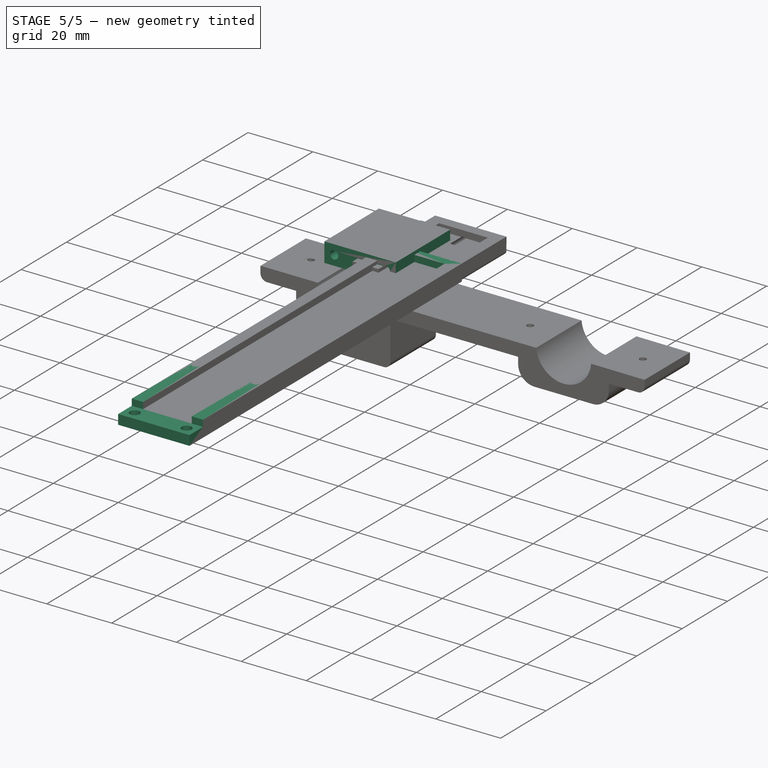
[diagram: stage 5 of 5 — iso view after this stage's code; geometry added in this stage tinted green]
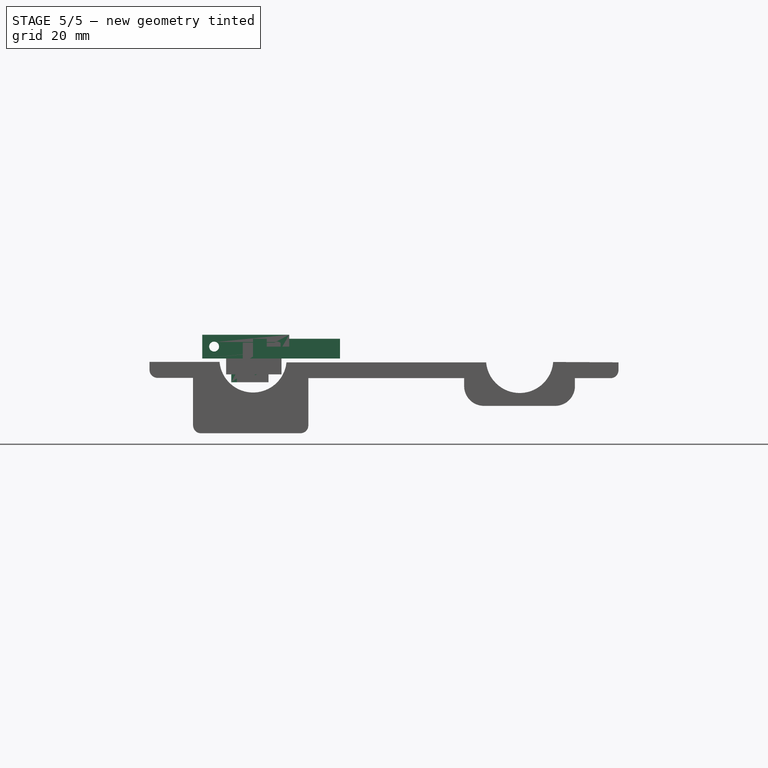
[diagram: stage 5 of 5 — front view after this stage's code; geometry added in this stage tinted green]
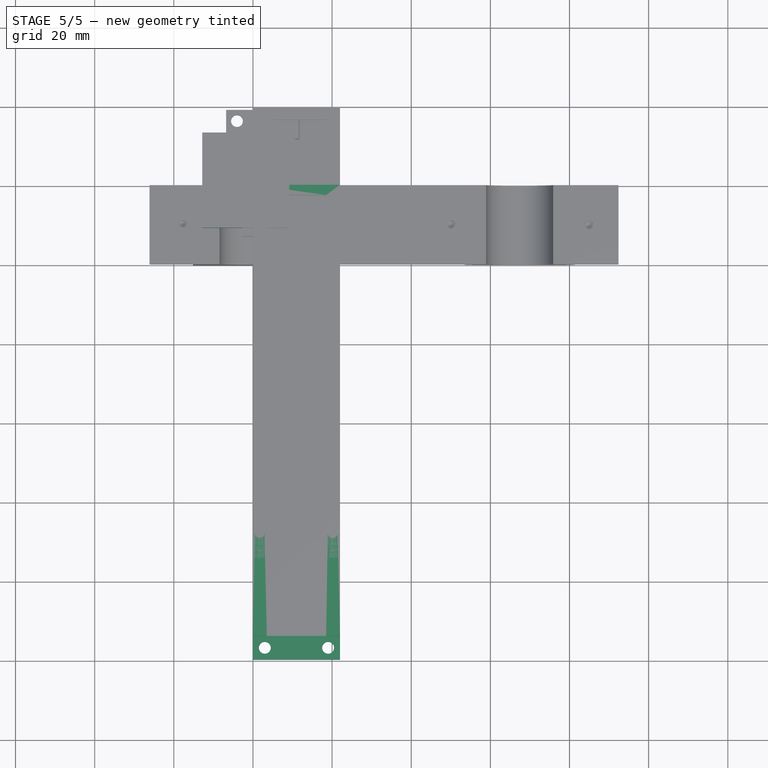
[diagram: stage 5 of 5 — top view after this stage's code; geometry added in this stage tinted green]
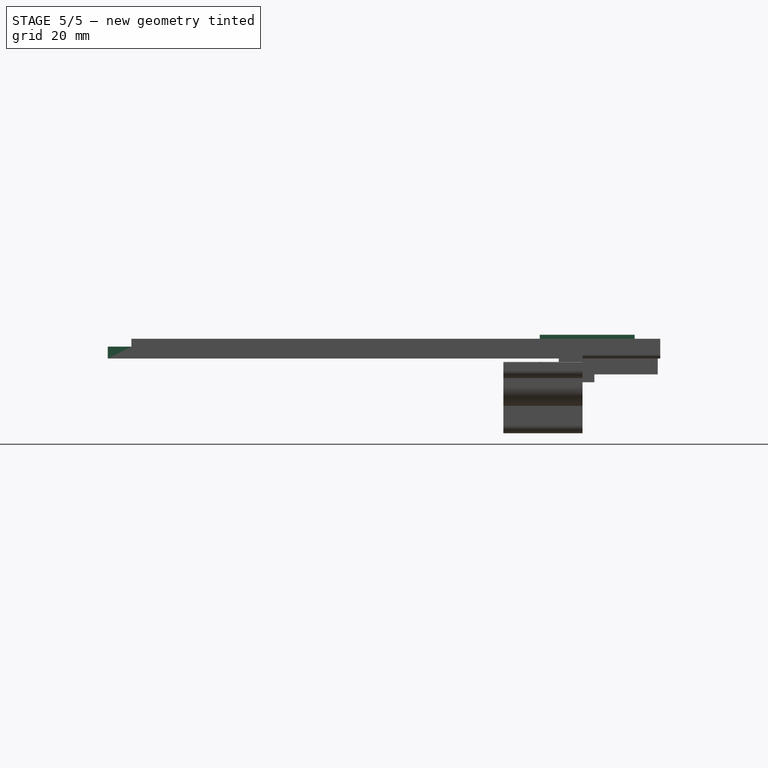
[diagram: stage 5 of 5 — right view after this stage's code; geometry added in this stage tinted green]
FEATURE [Sketcher::SketchObject] Sketch012  label="base"
  FullyConstrained = true
  MapMode = 5
  Support = -> [XY_Plane005]
  sketch-geometry (4):
    g0: LineSegment StartX=0 StartY=0 StartZ=0 EndX=22 EndY=0 EndZ=0
    g1: LineSegment StartX=22 StartY=0 StartZ=0 EndX=22 EndY=-120 EndZ=0
    g2: LineSegment StartX=22 StartY=-120 StartZ=0 EndX=0 EndY=-120 EndZ=0
    g3: LineSegment StartX=0 StartY=-120 StartZ=0 EndX=0 EndY=0 EndZ=0
  constraints (11):
    c: Coincident(g0,g1)
    c: Coincident(g1,g2)
    c: Coincident(g2,g3)
    c: Coincident(g3,g0)
    c: Horizontal(g0)
    c: Horizontal(g2)
    c: Vertical(g1)
    c: Vertical(g3)
    c: Coincident(g0,g-1)
    c: Distance(g0) = 22
    c: Distance(g1) = 120
FEATURE [PartDesign::Pad] Pad002
  Direction = (0,0,1)
  Length = 3
  Length2 = 10
  Profile = -> Sketch012
  ReferenceAxis = -> Sketch012 [N_Axis]
  Type = 0
FEATURE [Sketcher::SketchObject] Sketch001  label="barer"
  FullyConstrained = false
  MapMode = 5
  Placement = pos=(0,0,3) rot=(0,0,1;0rad)
  Support = -> [Pad002]
  sketch-geometry (9):
    g0: LineSegment StartX=3.5 StartY=-2.61497 StartZ=0 EndX=3.5 EndY=-114 EndZ=0
    g1: LineSegment StartX=3.5 StartY=-114 StartZ=0 EndX=0 EndY=-114 EndZ=0
    g2: LineSegment StartX=0 StartY=-114 StartZ=0 EndX=0 EndY=0 EndZ=0
    g3: LineSegment StartX=18.5 StartY=-2.61497 StartZ=0 EndX=18.5 EndY=-114 EndZ=0
    g4: LineSegment StartX=18.5 StartY=-114 StartZ=0 EndX=22 EndY=-114 EndZ=0
    g5: LineSegment StartX=22 StartY=-114 StartZ=0 EndX=22 EndY=0 EndZ=0
    g6: LineSegment StartX=3.5 StartY=-2.61497 StartZ=0 EndX=18.5 EndY=-2.61497 EndZ=0
    g7: LineSegment StartX=0 StartY=0 StartZ=0 EndX=22 EndY=0 EndZ=0
    g8: GeomPoint X=3.05136 Y=-109.02 Z=0
  constraints (23):
    c: Coincident(g0,g1)
    c: Coincident(g1,g2)
    c: Horizontal(g1)
    c: Vertical(g0)
    c: Vertical(g2)
    c: Distance(g2) = 114
    c: Coincident(g3,g4)
    c: Coincident(g4,g5)
    c: Horizontal(g4)
    c: Vertical(g3)
    c: Vertical(g5)
    c: PointOnObject(g5,g-1)
    c: Horizontal(g6)
    c: Coincident(g6,g0)
    c: Distance(g6) = 15
    c: Coincident(g6,g3)
    c: Distance(g1) = 3.5
    c: Distance(g4) = 3.5
    c: Coincident(g2,g-1)
    c: Coincident(g7,g2)
    c: Coincident(g7,g5)
    c: Distance(g0,g8) = 5
    c: Distance(g5) = 114
FEATURE [PartDesign::Pad] Pad003
  BaseFeature = -> Pad002
  Direction = (0,0,1)
  Length = 2
  Length2 = 10
  Profile = -> Sketch001
  ReferenceAxis = -> Sketch001 [N_Axis]
  Type = 0
FEATURE [Sketcher::SketchObject] Sketch003
  FullyConstrained = false
  MapMode = 5
  Placement = pos=(0,0,0) rot=(0,0.707107,0.707107;3.14159rad)
  sketch-geometry (1):
    g0: Circle CenterX=-11.2004 CenterY=1.54746 CenterZ=0 NormalX=0 NormalY=0 NormalZ=1 AngleXU=0 Radius=1
  constraints (1):
    c: Diameter(g0) = 2
FEATURE [PartDesign::Hole] Hole004
  BaseFeature = -> Pad003
  CustomThreadClearance = 0
  Depth = 25
  DepthType = 0
  Diameter = 2
  DrillForDepth = false
  DrillPoint = 1
  DrillPointAngle = 118
  HoleCutCountersinkAngle = 90
  HoleCutCustomValues = false
  HoleCutDepth = 0
  HoleCutDiameter = 6.1
  HoleCutType = 0
  ModelThread = false
  Profile = -> Sketch003
  Tapered = false
  TaperedAngle = 90
  ThreadClass = 0
  ThreadDepth = 25
  ThreadDepthType = 0
  ThreadDirection = 0
  ThreadFit = 0
  ThreadSize = 0
  ThreadType = 0
  Threaded = false
  UseCustomThreadClearance = false
FEATURE [Sketcher::SketchObject] Sketch004
  AttachmentOffset = pos=(0,-20,0) rot=(0,0,1;0rad)
  FullyConstrained = false
  MapMode = 5
  Placement = pos=(0,-20,3) rot=(0,0,1;0rad)
  Support = -> [Hole004]
  sketch-geometry (8):
    g0: Circle CenterX=2.99995 CenterY=-96.995 CenterZ=0 NormalX=0 NormalY=0 NormalZ=1 AngleXU=0 Radius=1.5
    g1: GeomPoint X=3.00347 Y=-93.9951 Z=0
    g2: GeomPoint X=3.00422 Y=-99.995 Z=0
    g3: GeomPoint X=0 Y=-96.978 Z=0
    g4: Circle CenterX=19.0029 CenterY=-97.0034 CenterZ=0 NormalX=0 NormalY=0 NormalZ=1 AngleXU=0 Radius=1.5
    g5: GeomPoint X=19.0026 Y=-100.003 Z=0
    g6: GeomPoint X=22.0029 Y=-96.9989 Z=0
    g7: GeomPoint X=18.9985 Y=-94.0034 Z=0
  constraints (9):
    c: Diameter(g0) = 3
    c: Distance(g0,g1) = 3
    c: Distance(g0,g2) = 3
    c: PointOnObject(g3,g-2)
    c: Distance(g3,g0) = 3
    c: Diameter(g4) = 3
    c: Distance(g4,g5) = 3
    c: Distance(g4,g6) = 3
    c: Distance(g7,g4) = 3
FEATURE [PartDesign::Hole] Hole003
  BaseFeature = -> Hole004
  CustomThreadClearance = 0
  Depth = 25
  DepthType = 0
  Diameter = 3
  DrillForDepth = false
  DrillPoint = 1
  DrillPointAngle = 118
  HoleCutCountersinkAngle = 90
  HoleCutCustomValues = false
  HoleCutDepth = 0
  HoleCutDiameter = 6.1
  HoleCutType = 0
  ModelThread = false
  Profile = -> Sketch004
  Tapered = false
  TaperedAngle = 90
  ThreadClass = 0
  ThreadDepth = 25
  ThreadDepthType = 0
  ThreadDirection = 0
  ThreadFit = 0
  ThreadSize = 0
  ThreadType = 0
  Threaded = false
  UseCustomThreadClearance = false
FEATURE [Sketcher::SketchObject] Sketch013
  FullyConstrained = false
  MapMode = 5
  Placement = pos=(0,0,0) rot=(1,0,0;3.14159rad)
  Support = -> [Hole003]
  sketch-geometry (4):
    g0: Circle CenterX=1.67405 CenterY=88.0111 CenterZ=0 NormalX=0 NormalY=0 NormalZ=1 AngleXU=0 Radius=1.25
    g1: Circle CenterX=20.1547 CenterY=88.0424 CenterZ=0 NormalX=0 NormalY=0 NormalZ=1 AngleXU=0 Radius=1.25
    g2: Circle CenterX=1.64597 CenterY=80.0108 CenterZ=0 NormalX=0 NormalY=0 NormalZ=1 AngleXU=0 Radius=1.25
    g3: Circle CenterX=20.1266 CenterY=80.0422 CenterZ=0 NormalX=0 NormalY=0 NormalZ=1 AngleXU=0 Radius=1.25
  constraints (4):
    c: Diameter(g0) = 2.5
    c: Diameter(g1) = 2.5
    c: Equal(g0,g2) = 2.5
    c: Equal(g1,g3) = 2.5
FEATURE [PartDesign::Hole] Hole005
  BaseFeature = -> Hole003
  CustomThreadClearance = 0
  Depth = 6
  DepthType = 0
  Diameter = 2.5
  DrillForDepth = false
  DrillPoint = 1
  DrillPointAngle = 118
  HoleCutCountersinkAngle = 90
  HoleCutCustomValues = false
  HoleCutDepth = 0
  HoleCutDiameter = 6.1
  HoleCutType = 0
  ModelThread = false
  Profile = -> Sketch013
  Tapered = false
  TaperedAngle = 90
  ThreadClass = 0
  ThreadDepth = 6
  ThreadDepthType = 0
  ThreadDirection = 0
  ThreadFit = 0
  ThreadSize = 0
  ThreadType = 0
  Threaded = false
  UseCustomThreadClearance = false
FEATURE [PartDesign::Body] Body  label="salazki_base"
  Group = -> [Sketch012,Pad002,Sketch001,Pad003,Sketch003,Hole004,Sketch004,Hole003,Sketch013,Hole005]
  Origin = -> Origin005
  Placement = pos=(-11.1,-94,-18.9) rot=(1,0,0;3.14159rad)
  Tip = -> Hole005
FEATURE [Sketcher::SketchObject] Sketch014
  FullyConstrained = false
  MapMode = 5
  Support = -> [XY_Plane006]
  sketch-geometry (4):
    g0: LineSegment StartX=-12.8248 StartY=13.1789 StartZ=0 EndX=9.17516 EndY=13.1789 EndZ=0
    g1: LineSegment StartX=9.17516 StartY=13.1789 StartZ=0 EndX=9.17516 EndY=-10.8211 EndZ=0
    g2: LineSegment StartX=9.17516 StartY=-10.8211 StartZ=0 EndX=-12.8248 EndY=-10.8211 EndZ=0
    g3: LineSegment StartX=-12.8248 StartY=-10.8211 StartZ=0 EndX=-12.8248 EndY=13.1789 EndZ=0
  constraints (10):
    c: Coincident(g0,g1)
    c: Coincident(g1,g2)
    c: Coincident(g2,g3)
    c: Coincident(g3,g0)
    c: Horizontal(g0)
    c: Horizontal(g2)
    c: Vertical(g1)
    c: Vertical(g3)
    c: Distance(g0) = 22
    c: Distance(g3) = 24
FEATURE [PartDesign::Pad] Pad004
  Direction = (0,0,1)
  Length = 6
  Length2 = 10
  Profile = -> Sketch014
  ReferenceAxis = -> Sketch014 [N_Axis]
  Type = 0
FEATURE [Sketcher::SketchObject] Sketch015
  FullyConstrained = false
  MapMode = 5
  Placement = pos=(0,13.1789,0) rot=(0,0.707107,0.707107;3.14159rad)
  Support = -> [Pad004]
  sketch-geometry (8):
    g0: Circle CenterX=-6.16796 CenterY=2.99997 CenterZ=0 NormalX=0 NormalY=0 NormalZ=1 AngleXU=0 Radius=1.25
    g1: Circle CenterX=9.81599 CenterY=2.99998 CenterZ=0 NormalX=0 NormalY=0 NormalZ=1 AngleXU=0 Radius=1.25
    g2: GeomPoint X=-9.16795 Y=3.00673 Z=0
    g3: GeomPoint X=-6.14719 Y=5.9999 Z=0
    g4: GeomPoint X=-6.1546 Y=0 Z=0
    g5: GeomPoint X=12.816 Y=2.99311 Z=0
    g6: GeomPoint X=9.82457 Y=5.99997 Z=0
    g7: GeomPoint X=9.82625 Y=0 Z=0
  constraints (10):
    c: Diameter(g0) = 2.5
    c: Diameter(g1) = 2.5
    c: Distance(g2,g0) = 3
    c: Distance(g0,g3) = 3
    c: PointOnObject(g4,g-1)
    c: Distance(g0,g4) = 3
    c: Distance(g1,g5) = 3
    c: Distance(g6,g1) = 3
    c: PointOnObject(g7,g-1)
    c: Distance(g1,g7) = 3
FEATURE [PartDesign::Hole] Hole006
  BaseFeature = -> Pad004
  CustomThreadClearance = 0
  Depth = 25
  DepthType = 0
  Diameter = 2.5
  DrillForDepth = false
  DrillPoint = 1
  DrillPointAngle = 118
  HoleCutCountersinkAngle = 90
  HoleCutCustomValues = false
  HoleCutDepth = 0
  HoleCutDiameter = 6.1
  HoleCutType = 0
  ModelThread = false
  Profile = -> Sketch015
  Tapered = false
  TaperedAngle = 90
  ThreadClass = 0
  ThreadDepth = 25
  ThreadDepthType = 0
  ThreadDirection = 0
  ThreadFit = 0
  ThreadSize = 0
  ThreadType = 0
  Threaded = false
  UseCustomThreadClearance = false
FEATURE [Sketcher::SketchObject] Sketch002
  AttachmentOffset = pos=(-2,0,0) rot=(0,0,1;0rad)
  FullyConstrained = false
  MapMode = 5
  Placement = pos=(-2,0,0) rot=(1,0,0;1.5708rad)
  Support = -> [XZ_Plane006]
  sketch-geometry (5):
    g0: LineSegment StartX=-3.48064 StartY=0 StartZ=0 EndX=3.51936 EndY=0 EndZ=0
    g1: LineSegment StartX=3.51936 StartY=0 StartZ=0 EndX=3.51936 EndY=-6 EndZ=0
    g2: LineSegment StartX=3.51936 StartY=-6 StartZ=0 EndX=-3.48064 EndY=-6 EndZ=0
    g3: LineSegment StartX=-3.48064 StartY=-6 StartZ=0 EndX=-3.48064 EndY=0 EndZ=0
    g4: Circle CenterX=0 CenterY=-2.5736 CenterZ=0 NormalX=0 NormalY=0 NormalZ=1 AngleXU=0 Radius=1.75
  constraints (13):
    c: Coincident(g0,g1)
    c: Coincident(g1,g2)
    c: Coincident(g2,g3)
    c: Coincident(g3,g0)
    c: Horizontal(g0)
    c: Horizontal(g2)
    c: Vertical(g1)
    c: Vertical(g3)
    c: PointOnObject(g0,g-1)
    c: Distance(g2) = 7
    c: Distance(g3) = 6
    c: PointOnObject(g4,g-2)
    c: Diameter(g4) = 3.5
FEATURE [PartDesign::Pad] Pad005
  BaseFeature = -> Hole006
  Direction = (0,-1,-2e-16)
  Length = 3
  Length2 = 10
  Profile = -> Sketch002
  ReferenceAxis = -> Sketch002 [N_Axis]
  Reversed = true
  Type = 0
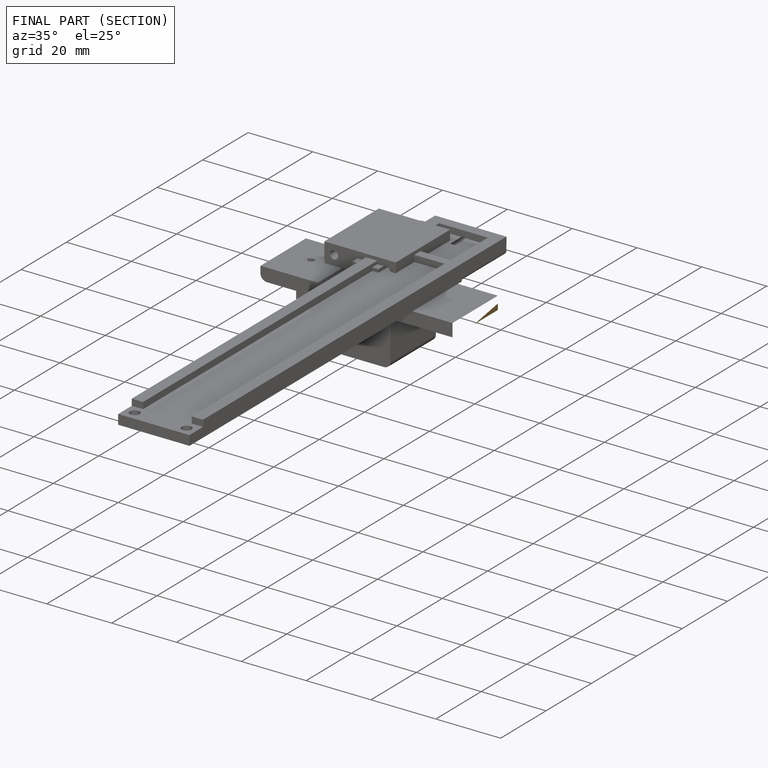
[diagram: finished part — half-section view (interior)]
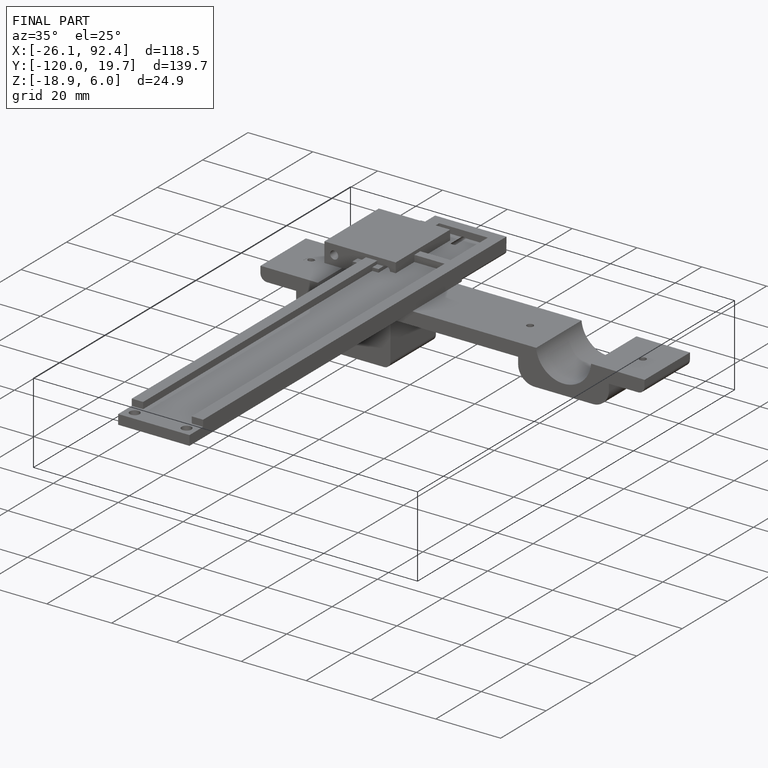
[diagram: finished part — iso view with bounding-box wireframe]
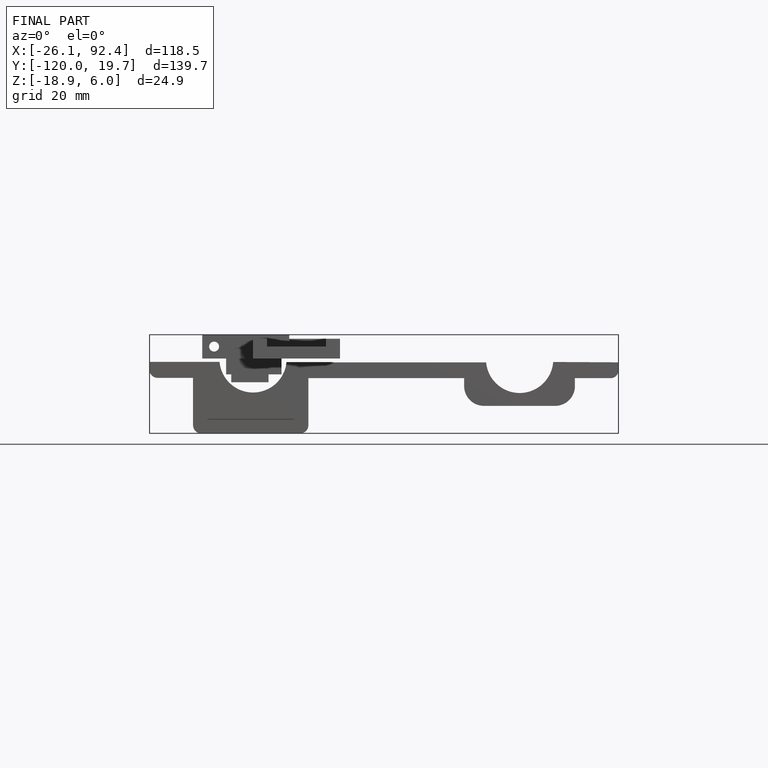
[diagram: finished part — front view with bounding-box wireframe]
